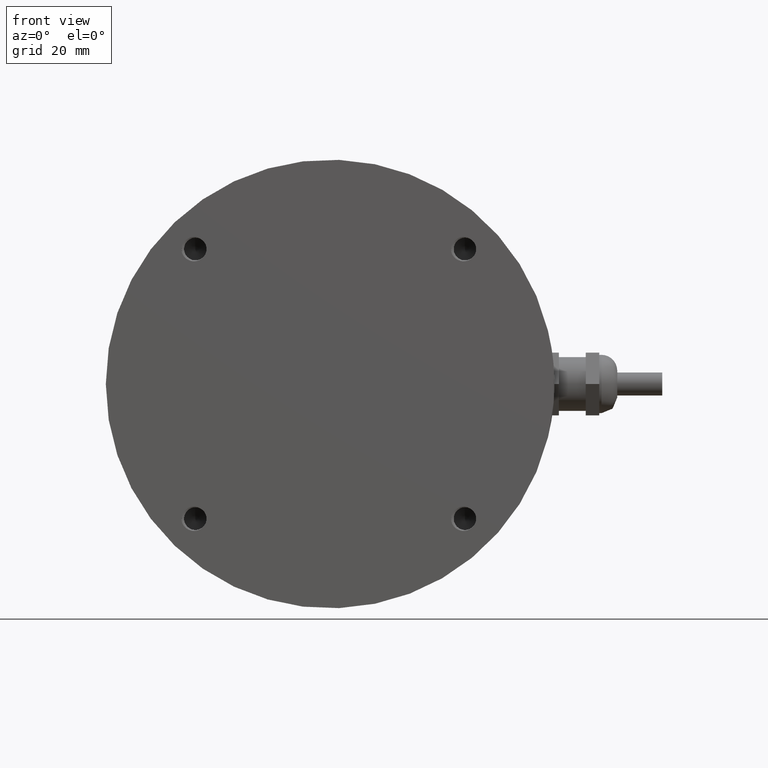
[diagram: clean part render]
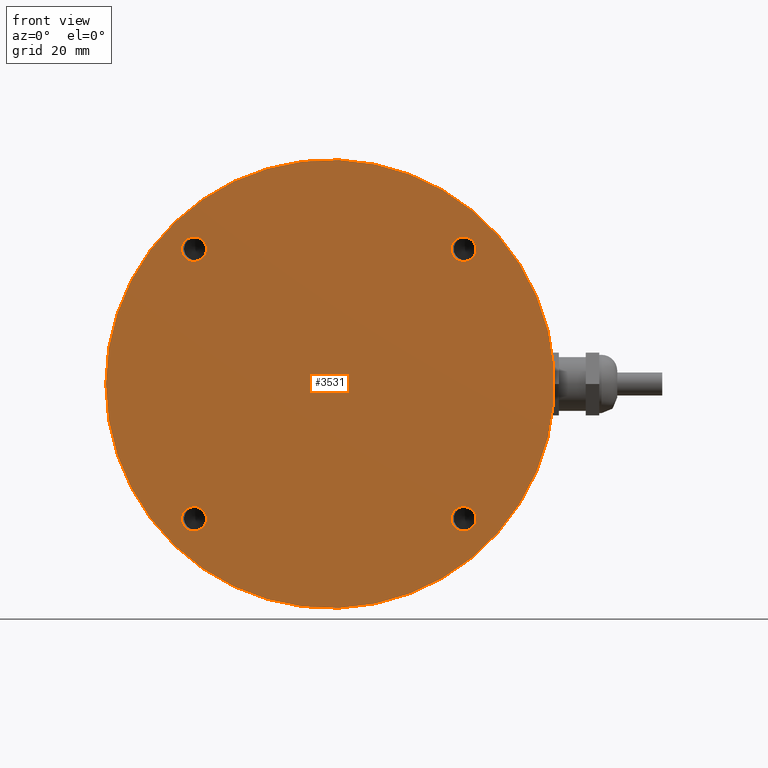
[diagram: same view with one face highlighted and labeled with its STEP entity id]
A machine part, front view. The second image highlights one B-rep face of the part: STEP entity #3531.
In plain terms, the highlighted planar face has unit normal (0, 1, 0).
Its self-contained STEP definition (entity closure, byte-faithful):
#280=B_SPLINE_CURVE_WITH_KNOTS('',3,(#9775,#9776,#9777,#9778,#9779,#9780,
#9781,#9782,#9783,#9784,#9785,#9786,#9787,#9788,#9789,#9790,#9791,#9792,
#9793,#9794,#9795,#9796,#9797,#9798,#9799,#9800,#9801,#9802,#9803,#9804,
#9805,#9806,#9807,#9808,#9809,#9810,#9811,#9812,#9813,#9814,#9815,#9816,
#9817,#9818,#9819,#9820,#9821,#9822,#9823,#9824,#9825,#9826,#9827,#9828,
#9829,#9830,#9831,#9832,#9833,#9834,#9835,#9836,#9837,#9838,#9839,#9840,
#9841,#9842,#9843,#9844,#9845,#9846,#9847,#9848,#9849,#9850,#9851,#9852,
#9853,#9854,#9855,#9856,#9857,#9858,#9859,#9860,#9861,#9862,#9863,#9864,
#9865,#9866,#9867,#9868),.UNSPECIFIED.,.F.,.F.,(4,3,3,3,3,3,3,3,3,3,3,3,
3,3,3,3,3,3,3,3,3,3,3,3,3,3,3,3,3,3,3,4),(0.,0.0253705834082992,0.0514120042985243,
0.0781588120021531,0.0899223541166714,0.0966319658482026,0.102678024640432,
0.129983762706716,0.15773806695677,0.184650166699466,0.195933338357884,
0.203013317119817,0.207157655786571,0.236272060857063,0.265386465927555,
0.293275587270377,0.302547287562926,0.311260059797156,0.315698428030233,
0.343805983337003,0.372945241404305,0.402398191117604,0.413315324493537,
0.422795520933631,0.427313730031338,0.457370780680161,0.482274708667488,
0.490757267952072,0.498351610007912,0.528860855783669,0.556986492629469,
0.566847306048092),.UNSPECIFIED.);
#282=B_SPLINE_CURVE_WITH_KNOTS('',3,(#10291,#10292,#10293,#10294,#10295,
#10296,#10297,#10298,#10299,#10300,#10301,#10302,#10303,#10304,#10305,#10306,
#10307,#10308,#10309,#10310,#10311,#10312,#10313,#10314,#10315,#10316,#10317,
#10318,#10319,#10320,#10321,#10322,#10323,#10324,#10325,#10326,#10327,#10328,
#10329,#10330,#10331,#10332,#10333,#10334,#10335,#10336,#10337,#10338,#10339,
#10340,#10341,#10342,#10343,#10344,#10345,#10346,#10347,#10348,#10349,#10350,
#10351,#10352,#10353,#10354,#10355,#10356,#10357,#10358,#10359,#10360,#10361,
#10362,#10363,#10364,#10365,#10366,#10367,#10368,#10369,#10370,#10371,#10372,
#10373,#10374,#10375,#10376,#10377,#10378,#10379,#10380,#10381),
 .UNSPECIFIED.,.F.,.F.,(4,3,3,3,3,3,3,3,3,3,3,3,3,3,3,3,3,3,3,3,3,3,3,3,
3,3,3,3,3,3,4),(0.,0.0297304173600889,0.0601166927258035,0.0893477848433163,
0.11492499044614,0.120627336259494,0.150386523752897,0.179980199902824,
0.208476507343594,0.220427405561447,0.228732878835483,0.234133263890825,
0.264049346778365,0.29195375844713,0.293965429665905,0.322911784357702,
0.33920514284161,0.343413182600711,0.371505602754483,0.399644575717355,
0.427379802239232,0.437700679220014,0.444655002057013,0.449294099859792,
0.47723825011643,0.498196362808908,0.506458519761779,0.511848963699955,
0.537782595189055,0.561070700886343,0.56924861039942),.UNSPECIFIED.);
#287=B_SPLINE_CURVE_WITH_KNOTS('',3,(#10996,#10997,#10998,#10999,#11000,
#11001,#11002,#11003,#11004,#11005,#11006,#11007,#11008,#11009,#11010,#11011,
#11012,#11013,#11014,#11015,#11016,#11017,#11018,#11019,#11020,#11021,#11022,
#11023,#11024,#11025,#11026,#11027,#11028,#11029,#11030,#11031,#11032,#11033,
#11034,#11035,#11036,#11037,#11038,#11039,#11040,#11041,#11042,#11043,#11044,
#11045,#11046,#11047,#11048,#11049,#11050,#11051,#11052,#11053,#11054,#11055,
#11056,#11057,#11058,#11059,#11060,#11061,#11062,#11063,#11064,#11065,#11066,
#11067,#11068,#11069,#11070,#11071,#11072,#11073,#11074,#11075,#11076,#11077,
#11078,#11079,#11080,#11081,#11082,#11083,#11084,#11085,#11086,#11087,#11088,
#11089),.UNSPECIFIED.,.F.,.F.,(4,3,3,3,3,3,3,3,3,3,3,3,3,3,3,3,3,3,3,3,
3,3,3,3,3,3,3,3,3,3,3,4),(0.,0.0253706187720667,0.0514120714810479,0.0781588707868613,
0.0899223676469118,0.0966319675357899,0.102678024647768,0.129983787127424,
0.15773810298617,0.184650193721516,0.195933344047695,0.203013318987727,
0.207157659883991,0.236272062905773,0.265386465927555,0.293275569418685,
0.302547250697831,0.31125990224818,0.315698399079355,0.343805928369098,
0.372945174701294,0.402398121621216,0.4133151944441,0.422795031626974,0.427312758888515,
0.457369793372607,0.48227396818682,0.490755821363297,0.498351626376732,
0.528860872105544,0.556986492629456,0.566847306048081),.UNSPECIFIED.);
#289=B_SPLINE_CURVE_WITH_KNOTS('',3,(#11512,#11513,#11514,#11515,#11516,
#11517,#11518,#11519,#11520,#11521,#11522,#11523,#11524,#11525,#11526,#11527,
#11528,#11529,#11530,#11531,#11532,#11533,#11534,#11535,#11536,#11537,#11538,
#11539,#11540,#11541,#11542,#11543,#11544,#11545,#11546,#11547,#11548,#11549,
#11550,#11551,#11552,#11553,#11554,#11555,#11556,#11557,#11558,#11559,#11560,
#11561,#11562,#11563,#11564,#11565,#11566,#11567,#11568,#11569,#11570,#11571,
#11572,#11573,#11574,#11575,#11576,#11577,#11578,#11579,#11580,#11581,#11582,
#11583,#11584,#11585,#11586,#11587,#11588,#11589,#11590,#11591,#11592,#11593,
#11594,#11595,#11596,#11597,#11598,#11599,#11600,#11601,#11602),
 .UNSPECIFIED.,.F.,.F.,(4,3,3,3,3,3,3,3,3,3,3,3,3,3,3,3,3,3,3,3,3,3,3,3,
3,3,3,3,3,3,4),(0.,0.0297303915303409,0.0601166543289027,0.0893477512460286,
0.114924961048514,0.120627334317061,0.150386521879332,0.179980205457306,
0.208476511509457,0.220427415161122,0.228732905211347,0.234133269440353,
0.264049349553132,0.291953768130068,0.29396542966591,0.322911783356907,
0.339205147320001,0.343413186521914,0.371505606088268,0.399644579406532,
0.427379812628913,0.437700702856547,0.444655216492684,0.449294338762945,
0.477238429293799,0.49819649719194,0.506458781294085,0.511849080073343,
0.537782725355651,0.561070700886361,0.569248610399438),.UNSPECIFIED.);
#294=B_SPLINE_CURVE_WITH_KNOTS('',3,(#12217,#12218,#12219,#12220,#12221,
#12222,#12223,#12224,#12225,#12226,#12227,#12228,#12229,#12230,#12231,#12232,
#12233,#12234,#12235,#12236,#12237,#12238,#12239,#12240,#12241,#12242,#12243,
#12244,#12245,#12246,#12247,#12248,#12249,#12250,#12251,#12252,#12253,#12254,
#12255,#12256,#12257,#12258,#12259,#12260,#12261,#12262,#12263,#12264,#12265,
#12266,#12267,#12268,#12269,#12270,#12271,#12272,#12273,#12274,#12275,#12276,
#12277,#12278,#12279,#12280,#12281,#12282,#12283,#12284,#12285,#12286,#12287,
#12288,#12289,#12290,#12291,#12292,#12293,#12294,#12295,#12296,#12297,#12298,
#12299,#12300,#12301,#12302,#12303,#12304,#12305,#12306,#12307,#12308,#12309,
#12310),.UNSPECIFIED.,.F.,.F.,(4,3,3,3,3,3,3,3,3,3,3,3,3,3,3,3,3,3,3,3,
3,3,3,3,3,3,3,3,3,3,3,4),(0.,0.0253705682757187,0.0514119755497427,0.0781587868469686,
0.0899223483265641,0.0966319651260404,0.102678024632256,0.129983752250442,
0.157738051532309,0.184650155131119,0.195933335921263,0.203013316321003,
0.20715765404962,0.236272059988585,0.26538646592755,0.293275594907346,0.302547303333847,
0.311260127198223,0.315698440417438,0.343806006854297,0.372945269942618,
0.402398220851452,0.413315380135417,0.422795730301141,0.427314145892936,
0.457371203464206,0.482275025755515,0.49075788748279,0.498351603135453,
0.528860848929923,0.55698649262944,0.566847306048062),.UNSPECIFIED.);
#296=B_SPLINE_CURVE_WITH_KNOTS('',3,(#12733,#12734,#12735,#12736,#12737,
#12738,#12739,#12740,#12741,#12742,#12743,#12744,#12745,#12746,#12747,#12748,
#12749,#12750,#12751,#12752,#12753,#12754,#12755,#12756,#12757,#12758,#12759,
#12760,#12761,#12762,#12763,#12764,#12765,#12766,#12767,#12768,#12769,#12770,
#12771,#12772,#12773,#12774,#12775,#12776,#12777,#12778,#12779,#12780,#12781,
#12782,#12783,#12784,#12785,#12786,#12787,#12788,#12789,#12790,#12791,#12792,
#12793,#12794,#12795,#12796,#12797,#12798,#12799,#12800,#12801,#12802,#12803,
#12804,#12805,#12806,#12807,#12808,#12809,#12810,#12811,#12812,#12813,#12814,
#12815,#12816,#12817,#12818,#12819,#12820,#12821,#12822,#12823),
 .UNSPECIFIED.,.F.,.F.,(4,3,3,3,3,3,3,3,3,3,3,3,3,3,3,3,3,3,3,3,3,3,3,3,
3,3,3,3,3,3,4),(0.,0.0297304037337922,0.0601166724702753,0.0893477671197287,
0.114924974938,0.120627335235574,0.150386522765833,0.179980202834872,0.208476509542629,
0.220427410627962,0.228732892756743,0.234133266814174,0.264049348240038,
0.291953763553422,0.293965429665902,0.322911783830581,0.339205145206377,
0.343413184659188,0.371505604503081,0.399644577653894,0.427379807710983,
0.437700691670993,0.444655115015024,0.449294225697953,0.477238344495057,
0.498196433592884,0.506458657523964,0.511849024980794,0.537782663749296,
0.561070700886366,0.569248610399447),.UNSPECIFIED.);
#301=B_SPLINE_CURVE_WITH_KNOTS('',3,(#13438,#13439,#13440,#13441,#13442,
#13443,#13444,#13445,#13446,#13447,#13448,#13449,#13450,#13451,#13452,#13453,
#13454,#13455,#13456,#13457,#13458,#13459,#13460,#13461,#13462,#13463,#13464,
#13465,#13466,#13467,#13468,#13469,#13470,#13471,#13472,#13473,#13474,#13475,
#13476,#13477,#13478,#13479,#13480,#13481,#13482,#13483,#13484,#13485,#13486,
#13487,#13488,#13489,#13490,#13491,#13492,#13493,#13494,#13495,#13496,#13497,
#13498,#13499,#13500,#13501,#13502,#13503,#13504,#13505,#13506,#13507,#13508,
#13509,#13510,#13511,#13512,#13513,#13514,#13515,#13516,#13517,#13518,#13519,
#13520,#13521,#13522,#13523,#13524,#13525,#13526,#13527,#13528,#13529,#13530,
#13531),.UNSPECIFIED.,.F.,.F.,(4,3,3,3,3,3,3,3,3,3,3,3,3,3,3,3,3,3,3,3,
3,3,3,3,3,3,3,3,3,3,3,4),(0.,0.0253706002455133,0.0514120362854931,0.0781588399907508,
0.0899223605588014,0.0966319666516116,0.102678024640986,0.129983774331143,
0.157738084109143,0.184650179563746,0.195933341066586,0.203013318010222,
0.20715765773775,0.236272061832652,0.265386465927554,0.293275578771231,
0.302547270011799,0.311259984789129,0.315698414246203,0.343805957167474,
0.372945209647784,0.402398158030994,0.41331526257787,0.422795287971228,
0.427313267549777,0.457370310501696,0.482274356033639,0.490756579023248,
0.498351617754146,0.528860863508109,0.556986492629466,0.566847306048091),
 .UNSPECIFIED.);
#303=B_SPLINE_CURVE_WITH_KNOTS('',3,(#13954,#13955,#13956,#13957,#13958,
#13959,#13960,#13961,#13962,#13963,#13964,#13965,#13966,#13967,#13968,#13969,
#13970,#13971,#13972,#13973,#13974,#13975,#13976,#13977,#13978,#13979,#13980,
#13981,#13982,#13983,#13984,#13985,#13986,#13987,#13988,#13989,#13990,#13991,
#13992,#13993,#13994,#13995,#13996,#13997,#13998,#13999,#14000,#14001,#14002,
#14003,#14004,#14005,#14006,#14007,#14008,#14009,#14010,#14011,#14012,#14013,
#14014,#14015,#14016,#14017,#14018,#14019,#14020,#14021,#14022,#14023,#14024,
#14025,#14026,#14027,#14028,#14029,#14030,#14031,#14032,#14033,#14034,#14035,
#14036,#14037,#14038,#14039,#14040,#14041,#14042,#14043,#14044),
 .UNSPECIFIED.,.F.,.F.,(4,3,3,3,3,3,3,3,3,3,3,3,3,3,3,3,3,3,3,3,3,3,3,3,
3,3,3,3,3,3,4),(0.,0.0297303807509431,0.060116638304541,0.0893477372247118,
0.114924948779861,0.120627333489626,0.150386521080176,0.17998020775748,
0.208476513234587,0.22042741914567,0.228732916155412,0.234133271734607,
0.264049350700257,0.291953772159343,0.293965429665908,0.322911782937161,
0.339205149183311,0.343413188154856,0.371505607475983,0.399644580941662,
0.427379816957591,0.437700712706597,0.444655305843719,0.449294438324573,
0.47723850396502,0.498196553195355,0.506458890293291,0.511849128597814,
0.537782779633776,0.56107070088636,0.569248610399438),.UNSPECIFIED.);
#320=FACE_BOUND('',#785,.T.);
#321=FACE_BOUND('',#786,.T.);
#322=FACE_BOUND('',#787,.T.);
#323=FACE_BOUND('',#788,.T.);
#350=PLANE('',#3796);
#563=FACE_OUTER_BOUND('',#784,.T.);
#784=EDGE_LOOP('',(#3130));
#785=EDGE_LOOP('',(#3131,#3132,#3133,#3134));
#786=EDGE_LOOP('',(#3135,#3136,#3137,#3138));
#787=EDGE_LOOP('',(#3139,#3140,#3141,#3142));
#788=EDGE_LOOP('',(#3143,#3144,#3145,#3146));
#1210=CIRCLE('',#3633,2.5175);
#1212=CIRCLE('',#3650,2.5175);
#1214=CIRCLE('',#3667,2.5175);
#1216=CIRCLE('',#3684,2.5175);
#1218=CIRCLE('',#3701,3.0735);
#1220=CIRCLE('',#3718,3.0735);
#1222=CIRCLE('',#3735,3.0735);
#1224=CIRCLE('',#3752,3.0735);
#1243=CIRCLE('',#3794,50.);
#1402=VERTEX_POINT('',#6090);
#1403=VERTEX_POINT('',#6104);
#1421=VERTEX_POINT('',#6681);
#1422=VERTEX_POINT('',#6695);
#1440=VERTEX_POINT('',#7272);
#1441=VERTEX_POINT('',#7286);
#1459=VERTEX_POINT('',#7863);
#1460=VERTEX_POINT('',#7877);
#1481=VERTEX_POINT('',#8186);
#1482=VERTEX_POINT('',#8192);
#1503=VERTEX_POINT('',#8487);
#1504=VERTEX_POINT('',#8493);
#1525=VERTEX_POINT('',#8788);
#1526=VERTEX_POINT('',#8794);
#1547=VERTEX_POINT('',#9089);
#1548=VERTEX_POINT('',#9095);
#1571=VERTEX_POINT('',#14075);
#1766=EDGE_CURVE('',#1403,#1402,#1210,.F.);
#1804=EDGE_CURVE('',#1422,#1421,#1212,.F.);
#1842=EDGE_CURVE('',#1441,#1440,#1214,.F.);
#1880=EDGE_CURVE('',#1460,#1459,#1216,.F.);
#1919=EDGE_CURVE('',#1482,#1481,#1218,.T.);
#1958=EDGE_CURVE('',#1504,#1503,#1220,.T.);
#1997=EDGE_CURVE('',#1526,#1525,#1222,.T.);
#2036=EDGE_CURVE('',#1548,#1547,#1224,.T.);
#2055=EDGE_CURVE('',#1402,#1548,#280,.T.);
#2057=EDGE_CURVE('',#1547,#1403,#282,.T.);
#2064=EDGE_CURVE('',#1421,#1526,#287,.T.);
#2066=EDGE_CURVE('',#1525,#1422,#289,.T.);
#2073=EDGE_CURVE('',#1459,#1504,#294,.T.);
#2075=EDGE_CURVE('',#1503,#1460,#296,.T.);
#2082=EDGE_CURVE('',#1440,#1482,#301,.T.);
#2084=EDGE_CURVE('',#1481,#1441,#303,.T.);
#2096=EDGE_CURVE('',#1571,#1571,#1243,.T.);
#3130=ORIENTED_EDGE('',*,*,#2096,.F.);
#3131=ORIENTED_EDGE('',*,*,#2057,.T.);
#3132=ORIENTED_EDGE('',*,*,#1766,.T.);
#3133=ORIENTED_EDGE('',*,*,#2055,.T.);
#3134=ORIENTED_EDGE('',*,*,#2036,.T.);
#3135=ORIENTED_EDGE('',*,*,#2066,.T.);
#3136=ORIENTED_EDGE('',*,*,#1804,.T.);
#3137=ORIENTED_EDGE('',*,*,#2064,.T.);
#3138=ORIENTED_EDGE('',*,*,#1997,.T.);
#3139=ORIENTED_EDGE('',*,*,#2075,.T.);
#3140=ORIENTED_EDGE('',*,*,#1880,.T.);
#3141=ORIENTED_EDGE('',*,*,#2073,.T.);
#3142=ORIENTED_EDGE('',*,*,#1958,.T.);
#3143=ORIENTED_EDGE('',*,*,#2084,.T.);
#3144=ORIENTED_EDGE('',*,*,#1842,.T.);
#3145=ORIENTED_EDGE('',*,*,#2082,.T.);
#3146=ORIENTED_EDGE('',*,*,#1919,.T.);
#3531=ADVANCED_FACE('',(#563,#320,#321,#322,#323),#350,.F.);
#3633=AXIS2_PLACEMENT_3D('',#6105,#4094,#4095);
#3650=AXIS2_PLACEMENT_3D('',#6696,#4138,#4139);
#3667=AXIS2_PLACEMENT_3D('',#7287,#4182,#4183);
#3684=AXIS2_PLACEMENT_3D('',#7878,#4226,#4227);
#3701=AXIS2_PLACEMENT_3D('',#8193,#4271,#4272);
#3718=AXIS2_PLACEMENT_3D('',#8494,#4316,#4317);
#3735=AXIS2_PLACEMENT_3D('',#8795,#4361,#4362);
#3752=AXIS2_PLACEMENT_3D('',#9096,#4406,#4407);
#3794=AXIS2_PLACEMENT_3D('',#14077,#4499,#4500);
#3796=AXIS2_PLACEMENT_3D('',#14079,#4503,#4504);
#4094=DIRECTION('center_axis',(0.,-1.,0.));
#4095=DIRECTION('ref_axis',(0.,0.,-1.));
#4138=DIRECTION('center_axis',(0.,-1.,0.));
#4139=DIRECTION('ref_axis',(0.,0.,-1.));
#4182=DIRECTION('center_axis',(0.,-1.,0.));
#4183=DIRECTION('ref_axis',(0.,0.,-1.));
#4226=DIRECTION('center_axis',(0.,-1.,0.));
#4227=DIRECTION('ref_axis',(0.,0.,-1.));
#4271=DIRECTION('center_axis',(0.,1.,0.));
#4272=DIRECTION('ref_axis',(-9.10285349619453E-14,0.,-1.));
#4316=DIRECTION('center_axis',(0.,1.,0.));
#4317=DIRECTION('ref_axis',(-8.66938428209005E-14,0.,-1.));
#4361=DIRECTION('center_axis',(0.,1.,0.));
#4362=DIRECTION('ref_axis',(-8.81387402012488E-14,0.,-1.));
#4406=DIRECTION('center_axis',(0.,1.,0.));
#4407=DIRECTION('ref_axis',(-9.24734323422937E-14,0.,-1.));
#4499=DIRECTION('center_axis',(0.,1.,0.));
#4500=DIRECTION('ref_axis',(1.,0.,0.));
#4503=DIRECTION('center_axis',(0.,1.,0.));
#4504=DIRECTION('ref_axis',(1.,0.,0.));
#6090=CARTESIAN_POINT('',(31.6880254038032,0.,-31.9655041970934));
#6104=CARTESIAN_POINT('',(31.6880254038032,0.,-28.1385722037632));
#6105=CARTESIAN_POINT('Origin',(30.0520382004283,0.,-30.0520382004283));
#6681=CARTESIAN_POINT('',(-28.4160509970533,0.,28.1385722037632));
#6695=CARTESIAN_POINT('',(-28.4160509970533,0.,31.9655041970933));
#6696=CARTESIAN_POINT('Origin',(-30.0520382004283,0.,30.0520382004283));
#7272=CARTESIAN_POINT('',(31.6880254038032,0.,28.1385722037632));
#7286=CARTESIAN_POINT('',(31.6880254038032,0.,31.9655041970933));
#7287=CARTESIAN_POINT('Origin',(30.0520382004283,0.,30.0520382004283));
#7863=CARTESIAN_POINT('',(-28.4160509970533,0.,-31.9655041970933));
#7877=CARTESIAN_POINT('',(-28.4160509970533,0.,-28.1385722037632));
#7878=CARTESIAN_POINT('Origin',(-30.0520382004283,0.,-30.0520382004283));
#8186=CARTESIAN_POINT('',(27.0828152466826,0.,30.8458374829611));
#8192=CARTESIAN_POINT('',(27.0828152466826,0.,29.2582389178954));
#8193=CARTESIAN_POINT('Origin',(30.0520382004283,0.,30.0520382004283));
#8487=CARTESIAN_POINT('',(-33.021261154174,0.,-29.2582389178954));
#8493=CARTESIAN_POINT('',(-33.021261154174,0.,-30.8458374829611));
#8494=CARTESIAN_POINT('Origin',(-30.0520382004283,0.,-30.0520382004283));
#8788=CARTESIAN_POINT('',(-33.021261154174,0.,30.8458374829611));
#8794=CARTESIAN_POINT('',(-33.021261154174,0.,29.2582389178954));
#8795=CARTESIAN_POINT('Origin',(-30.0520382004283,0.,30.0520382004283));
#9089=CARTESIAN_POINT('',(27.0828152466826,0.,-29.2582389178954));
#9095=CARTESIAN_POINT('',(27.0828152466826,0.,-30.8458374829611));
#9096=CARTESIAN_POINT('Origin',(30.0520382004283,0.,-30.0520382004283));
#9775=CARTESIAN_POINT('Ctrl Pts',(31.6880254038032,-5.55111512312578E-16,
-31.9655041970934));
#9776=CARTESIAN_POINT('Ctrl Pts',(31.6301115497931,-5.53233711922707E-16,
-32.0271307785434));
#9777=CARTESIAN_POINT('Ctrl Pts',(31.5690481795617,-5.36253069702297E-16,
-32.0853891318414));
#9778=CARTESIAN_POINT('Ctrl Pts',(31.505219823432,-5.44703171456717E-16,
-32.1402810394055));
#9779=CARTESIAN_POINT('Ctrl Pts',(31.4397037468028,-5.53376706976602E-16,
-32.1966243739414));
#9780=CARTESIAN_POINT('Ctrl Pts',(31.3712740981926,-3.56196008000576E-16,
-32.2494213190153));
#9781=CARTESIAN_POINT('Ctrl Pts',(31.300298171586,-2.98372437868011E-16,
-32.2986483104948));
#9782=CARTESIAN_POINT('Ctrl Pts',(31.2273997122993,-2.3898259437243E-16,
-32.3492087188721));
#9783=CARTESIAN_POINT('Ctrl Pts',(31.1518146062219,-4.52118722773125E-16,
-32.3960036866365));
#9784=CARTESIAN_POINT('Ctrl Pts',(31.0738978765374,-5.20417042793042E-16,
-32.4389736493853));
#9785=CARTESIAN_POINT('Ctrl Pts',(31.039629236286,-5.5045539999842E-16,
-32.4578723146786));
#9786=CARTESIAN_POINT('Ctrl Pts',(31.0049090843992,-1.54609198004119E-16,
-32.4760306112277));
#9787=CARTESIAN_POINT('Ctrl Pts',(30.9697655543268,-9.71445146547012E-17,
-32.4934410543344));
#9788=CARTESIAN_POINT('Ctrl Pts',(30.9497206189353,-6.4368186759881E-17,
-32.5033715082898));
#9789=CARTESIAN_POINT('Ctrl Pts',(30.9295379269893,-1.42832729295966E-16,
-32.5130586379326));
#9790=CARTESIAN_POINT('Ctrl Pts',(30.9092225508326,-9.71445146547012E-17,
-32.5225008205617));
#9791=CARTESIAN_POINT('Ctrl Pts',(30.8909162816258,-5.59746760878944E-17,
-32.531009210255));
#9792=CARTESIAN_POINT('Ctrl Pts',(30.8724965489481,-8.02450452504136E-16,
-32.5393210807999));
#9793=CARTESIAN_POINT('Ctrl Pts',(30.8539988087688,-8.04911692853238E-16,
-32.5474215801207));
#9794=CARTESIAN_POINT('Ctrl Pts',(30.7704577011629,-8.16027361191948E-16,
-32.5840057616944));
#9795=CARTESIAN_POINT('Ctrl Pts',(30.6852332372736,-1.23202371393035E-15,
-32.616328838192));
#9796=CARTESIAN_POINT('Ctrl Pts',(30.5987237451301,-1.08246744900953E-15,
-32.6443651032026));
#9797=CARTESIAN_POINT('Ctrl Pts',(30.5107931145922,-9.30454342129277E-16,
-32.6728619351596));
#9798=CARTESIAN_POINT('Ctrl Pts',(30.4215341343727,-3.14602281586883E-16,
-32.6969304493654));
#9799=CARTESIAN_POINT('Ctrl Pts',(30.3313279757065,-3.60822483003176E-16,
-32.7165045835058));
#9800=CARTESIAN_POINT('Ctrl Pts',(30.2438591233959,-4.05640132166201E-16,
-32.7354847404436));
#9801=CARTESIAN_POINT('Ctrl Pts',(30.1554987881336,-9.33468170056871E-16,
-32.7502392993579));
#9802=CARTESIAN_POINT('Ctrl Pts',(30.0665726318974,-9.99200722162641E-16,
-32.7606673008805));
#9803=CARTESIAN_POINT('Ctrl Pts',(30.0292894360365,-1.02675976348778E-15,
-32.7650393466279));
#9804=CARTESIAN_POINT('Ctrl Pts',(29.9919065887382,-6.26072429135202E-16,
-32.7686503586536));
#9805=CARTESIAN_POINT('Ctrl Pts',(29.954447472734,-6.10622663543836E-16,
-32.7714905644258));
#9806=CARTESIAN_POINT('Ctrl Pts',(29.9309425794487,-6.00928225173564E-16,
-32.7732727403206));
#9807=CARTESIAN_POINT('Ctrl Pts',(29.9074076512073,-4.42525978890973E-16,
-32.7747513963245));
#9808=CARTESIAN_POINT('Ctrl Pts',(29.8838484319842,-4.30211422042248E-16,
-32.7759238221033));
#9809=CARTESIAN_POINT('Ctrl Pts',(29.8700577997707,-4.23002969047091E-16,
-32.7766101136379));
#9810=CARTESIAN_POINT('Ctrl Pts',(29.8562637956197,-2.62525364804685E-16,
-32.7771911855679));
#9811=CARTESIAN_POINT('Ctrl Pts',(29.8424754037051,-2.77555756156289E-16,
-32.7776665341529));
#9812=CARTESIAN_POINT('Ctrl Pts',(29.745610533396,-3.83145800157533E-16,
-32.7810059068167));
#9813=CARTESIAN_POINT('Ctrl Pts',(29.6489086967436,-1.09237759207599E-15,
-32.7791375367466));
#9814=CARTESIAN_POINT('Ctrl Pts',(29.5527888971392,-9.43689570931383E-16,
-32.7719963292207));
#9815=CARTESIAN_POINT('Ctrl Pts',(29.4566690975348,-7.95001549786775E-16,
-32.7648551216948));
#9816=CARTESIAN_POINT('Ctrl Pts',(29.3611302925793,-5.67524686400471E-16,
-32.7524415084839));
#9817=CARTESIAN_POINT('Ctrl Pts',(29.2665726981508,-6.10622663543836E-16,
-32.7346379308153));
#9818=CARTESIAN_POINT('Ctrl Pts',(29.1759945730433,-7.0638590282187E-16,
-32.717583619153));
#9819=CARTESIAN_POINT('Ctrl Pts',(29.0863158407749,-4.95583196365072E-16,
-32.6955836039617));
#9820=CARTESIAN_POINT('Ctrl Pts',(28.9977762661183,-4.71844785465692E-16,
-32.6689129149058));
#9821=CARTESIAN_POINT('Ctrl Pts',(28.968341405473,-4.63952983189996E-16,
-32.6600462807626));
#9822=CARTESIAN_POINT('Ctrl Pts',(28.9390324825844,-4.16333634234434E-16,
-32.6506630035438));
#9823=CARTESIAN_POINT('Ctrl Pts',(28.9098584805606,-4.16333634234434E-16,
-32.6407719411198));
#9824=CARTESIAN_POINT('Ctrl Pts',(28.8824431816646,-4.16333634234434E-16,
-32.631477143905));
#9825=CARTESIAN_POINT('Ctrl Pts',(28.8551470260398,-8.53355186466201E-16,
-32.6217339316881));
#9826=CARTESIAN_POINT('Ctrl Pts',(28.8279775915311,-8.88178419700125E-16,
-32.6115491848863));
#9827=CARTESIAN_POINT('Ctrl Pts',(28.8141372257104,-9.05917702674982E-16,
-32.6063609789455));
#9828=CARTESIAN_POINT('Ctrl Pts',(28.8003378464061,-3.8348622739454E-16,
-32.6010612015935));
#9829=CARTESIAN_POINT('Ctrl Pts',(28.7865842266874,-3.88578058618805E-16,
-32.5956527130486));
#9830=CARTESIAN_POINT('Ctrl Pts',(28.6994845074637,-4.20823902188556E-16,
-32.5614015236658));
#9831=CARTESIAN_POINT('Ctrl Pts',(28.6141706178657,-6.83487505368223E-16,
-32.5227762069685));
#9832=CARTESIAN_POINT('Ctrl Pts',(28.5308773856042,-6.93889390390723E-16,
-32.4801071281578));
#9833=CARTESIAN_POINT('Ctrl Pts',(28.4445268309708,-7.04673082132994E-16,
-32.4358718581248));
#9834=CARTESIAN_POINT('Ctrl Pts',(28.3603472638166,-3.08032115948924E-16,
-32.3872903915704));
#9835=CARTESIAN_POINT('Ctrl Pts',(28.278603765103,-2.4980018054066E-16,
-32.3346749624076));
#9836=CARTESIAN_POINT('Ctrl Pts',(28.1959802764938,-1.90941363293963E-16,
-32.2814931145481));
#9837=CARTESIAN_POINT('Ctrl Pts',(28.1158447658489,-4.20342886884387E-16,
-32.2241895678734));
#9838=CARTESIAN_POINT('Ctrl Pts',(28.0384863019011,-2.77555756156289E-16,
-32.1630352207033));
#9839=CARTESIAN_POINT('Ctrl Pts',(28.0098123430312,-2.24629778768645E-16,
-32.1403675364451));
#9840=CARTESIAN_POINT('Ctrl Pts',(27.9815201400204,-5.42465578471991E-16,
-32.1171703124942));
#9841=CARTESIAN_POINT('Ctrl Pts',(27.9536252981593,-5.82867087928207E-16,
-32.0934557556973));
#9842=CARTESIAN_POINT('Ctrl Pts',(27.9294020363009,-6.17950862480743E-16,
-32.072862560654));
#9843=CARTESIAN_POINT('Ctrl Pts',(27.9054784222743,-1.23391487964571E-15,
-32.0518792409356));
#9844=CARTESIAN_POINT('Ctrl Pts',(27.8818650466921,-1.2490009027033E-15,
-32.0305133137529));
#9845=CARTESIAN_POINT('Ctrl Pts',(27.8706110427211,-1.25619081770746E-15,
-32.0203304312369));
#9846=CARTESIAN_POINT('Ctrl Pts',(27.8594305113365,-5.55445926963935E-16,
-32.0100632965723));
#9847=CARTESIAN_POINT('Ctrl Pts',(27.8483302960534,-5.55111512312578E-16,
-31.9997183741884));
#9848=CARTESIAN_POINT('Ctrl Pts',(27.7744869378195,-5.52886843667068E-16,
-31.9308995459039));
#9849=CARTESIAN_POINT('Ctrl Pts',(27.7041181056425,-5.04845337975632E-16,
-31.8585716305507));
#9850=CARTESIAN_POINT('Ctrl Pts',(27.6375147609985,-6.66133814775094E-16,
-31.7830447328008));
#9851=CARTESIAN_POINT('Ctrl Pts',(27.5823302081923,-7.99770233674924E-16,
-31.720466522961));
#9852=CARTESIAN_POINT('Ctrl Pts',(27.5297307107726,-7.7169467397782E-16,
-31.6556911121886));
#9853=CARTESIAN_POINT('Ctrl Pts',(27.4798953194396,-5.55111512312578E-16,
-31.588871857944));
#9854=CARTESIAN_POINT('Ctrl Pts',(27.4629208220163,-4.81340840079548E-16,
-31.5661124648969));
#9855=CARTESIAN_POINT('Ctrl Pts',(27.4462671347998,-5.89956383026903E-16,
-31.5431157913608));
#9856=CARTESIAN_POINT('Ctrl Pts',(27.4299417703959,-5.55111512312578E-16,
-31.5198874197457));
#9857=CARTESIAN_POINT('Ctrl Pts',(27.4153258511539,-5.23915282705667E-16,
-31.4990913140509));
#9858=CARTESIAN_POINT('Ctrl Pts',(27.4009707005012,-6.24956066336201E-16,
-31.4781056466268));
#9859=CARTESIAN_POINT('Ctrl Pts',(27.3868976772021,-6.10622663543836E-16,
-31.4569587199371));
#9860=CARTESIAN_POINT('Ctrl Pts',(27.3303612026157,-5.53040149432707E-16,
-31.3720037917772));
#9861=CARTESIAN_POINT('Ctrl Pts',(27.2783266928183,-6.72729872605212E-16,
-31.284383036524));
#9862=CARTESIAN_POINT('Ctrl Pts',(27.2311028094471,-2.77555756156289E-16,
-31.1943871405217));
#9863=CARTESIAN_POINT('Ctrl Pts',(27.1875684066661,8.67444226089844E-17,
-31.111422392485));
#9864=CARTESIAN_POINT('Ctrl Pts',(27.1481220767537,-1.54742094798986E-16,
-31.0264383075825));
#9865=CARTESIAN_POINT('Ctrl Pts',(27.113034100361,5.55111512312578E-17,
-30.9396355568861));
#9866=CARTESIAN_POINT('Ctrl Pts',(27.1007322993265,1.85101753331659E-16,
-30.9092026200771));
#9867=CARTESIAN_POINT('Ctrl Pts',(27.0889665117604,4.56582193422585E-17,
-30.878545929582));
#9868=CARTESIAN_POINT('Ctrl Pts',(27.0777330020589,5.55111512312578E-17,
-30.8476783792767));
#10291=CARTESIAN_POINT('Ctrl Pts',(27.0828152466826,-1.11022302462516E-15,
-29.2582389178955));
#10292=CARTESIAN_POINT('Ctrl Pts',(27.1168606165921,-1.08601760244291E-15,
-29.165169059587));
#10293=CARTESIAN_POINT('Ctrl Pts',(27.1556719355706,-1.1456142082004E-15,
-29.0741645101572));
#10294=CARTESIAN_POINT('Ctrl Pts',(27.1989216327108,-1.02348685082632E-15,
-28.9854340491479));
#10295=CARTESIAN_POINT('Ctrl Pts',(27.2431254254415,-8.98665343414935E-16,
-28.8947461792503));
#10296=CARTESIAN_POINT('Ctrl Pts',(27.291966195108,-1.24885262143308E-15,
-28.8064331698679));
#10297=CARTESIAN_POINT('Ctrl Pts',(27.3451397321163,-1.16226472890446E-15,
-28.7207468508335));
#10298=CARTESIAN_POINT('Ctrl Pts',(27.3962917913864,-1.07896861471137E-15,
-28.6383180353646));
#10299=CARTESIAN_POINT('Ctrl Pts',(27.4514543206853,-1.22588400828344E-15,
-28.5583197074344));
#10300=CARTESIAN_POINT('Ctrl Pts',(27.5103865338661,-1.36002320516582E-15,
-28.4810090181635));
#10301=CARTESIAN_POINT('Ctrl Pts',(27.5619522203993,-1.4773950024379E-15,
-28.4133621650514));
#10302=CARTESIAN_POINT('Ctrl Pts',(27.6164047675805,-1.61137402522611E-15,
-28.3477733254));
#10303=CARTESIAN_POINT('Ctrl Pts',(27.673595570172,-1.68615121864946E-15,
-28.2844393899889));
#10304=CARTESIAN_POINT('Ctrl Pts',(27.6863460535041,-1.70282252443921E-15,
-28.2703193173334));
#10305=CARTESIAN_POINT('Ctrl Pts',(27.6992353602043,-1.24820692450263E-15,
-28.2563086997718));
#10306=CARTESIAN_POINT('Ctrl Pts',(27.7122433641164,-1.23512311489549E-15,
-28.2424292542163));
#10307=CARTESIAN_POINT('Ctrl Pts',(27.7801290448531,-1.16684182225357E-15,
-28.1699957266625));
#10308=CARTESIAN_POINT('Ctrl Pts',(27.8513357447226,-6.99847874123527E-16,
-28.1010278131368));
#10309=CARTESIAN_POINT('Ctrl Pts',(27.925573693373,-8.18789480661053E-16,
-28.0357656244881));
#10310=CARTESIAN_POINT('Ctrl Pts',(27.9993987536466,-9.3706957098287E-16,
-27.9708664038311));
#10311=CARTESIAN_POINT('Ctrl Pts',(28.0762222340426,-6.15738963179664E-16,
-27.909631316303));
#10312=CARTESIAN_POINT('Ctrl Pts',(28.1557859409065,-6.24500451351651E-16,
-27.8523400909948));
#10313=CARTESIAN_POINT('Ctrl Pts',(28.23239933089,-6.32937053121661E-16,
-27.7971732924609));
#10314=CARTESIAN_POINT('Ctrl Pts',(28.3115542292181,-1.01940596129796E-15,
-27.7456631290957));
#10315=CARTESIAN_POINT('Ctrl Pts',(28.3930337258281,-1.01307850997046E-15,
-27.6981042027441));
#10316=CARTESIAN_POINT('Ctrl Pts',(28.4272049310922,-1.01042487749717E-15,
-27.6781587452718));
#10317=CARTESIAN_POINT('Ctrl Pts',(28.4617851007749,-8.34101650059345E-16,
-27.6589088126881));
#10318=CARTESIAN_POINT('Ctrl Pts',(28.4967585345986,-8.04911692853238E-16,
-27.64037871887));
#10319=CARTESIAN_POINT('Ctrl Pts',(28.5210638976457,-7.84625652002903E-16,
-27.627500925405));
#10320=CARTESIAN_POINT('Ctrl Pts',(28.5455592015108,-8.8259946678563E-16,
-27.6149708309117));
#10321=CARTESIAN_POINT('Ctrl Pts',(28.5702391825903,-8.74300631892311E-16,
-27.6027970617888));
#10322=CARTESIAN_POINT('Ctrl Pts',(28.5862866005507,-8.68904563245056E-16,
-27.5948814333027));
#10323=CARTESIAN_POINT('Ctrl Pts',(28.6024147285903,-5.51314278820066E-16,
-27.5871153374172));
#10324=CARTESIAN_POINT('Ctrl Pts',(28.6185998892443,-5.55111512312578E-16,
-27.5795113433408));
#10325=CARTESIAN_POINT('Ctrl Pts',(28.7082595343827,-5.76146744197195E-16,
-27.5373881031021));
#10326=CARTESIAN_POINT('Ctrl Pts',(28.7998058106663,-8.43019520304091E-16,
-27.5001644266949));
#10327=CARTESIAN_POINT('Ctrl Pts',(28.8929673463391,-9.71445146547012E-16,
-27.468131781724));
#10328=CARTESIAN_POINT('Ctrl Pts',(28.9798643459523,-1.09123494513037E-15,
-27.4382531336581));
#10329=CARTESIAN_POINT('Ctrl Pts',(29.0681674670011,-9.93257763448634E-16,
-27.412891034108));
#10330=CARTESIAN_POINT('Ctrl Pts',(29.1576652201754,-9.43689570931383E-16,
-27.3923325526606));
#10331=CARTESIAN_POINT('Ctrl Pts',(29.1641172484906,-9.40116125003287E-16,
-27.390850460656));
#10332=CARTESIAN_POINT('Ctrl Pts',(29.1705754867149,-9.17720718279802E-16,
-27.3893933565165));
#10333=CARTESIAN_POINT('Ctrl Pts',(29.1770398559356,-9.15933995315754E-16,
-27.3879613584635));
#10334=CARTESIAN_POINT('Ctrl Pts',(29.2700570063407,-9.16908813049884E-16,
-27.3673560412653));
#10335=CARTESIAN_POINT('Ctrl Pts',(29.3643445576125,-1.05792556433968E-15,
-27.3519446946857));
#10336=CARTESIAN_POINT('Ctrl Pts',(29.4594938162931,-1.0547118733939E-15,
-27.3416502407568));
#10337=CARTESIAN_POINT('Ctrl Pts',(29.5130515439471,-1.05290294722017E-15,
-27.3358556863113));
#10338=CARTESIAN_POINT('Ctrl Pts',(29.5668821024286,-7.75950166455122E-16,
-27.3316832726415));
#10339=CARTESIAN_POINT('Ctrl Pts',(29.6209099690879,-7.7715611723761E-16,
-27.3291260138644));
#10340=CARTESIAN_POINT('Ctrl Pts',(29.634863593887,-7.77467574746216E-16,
-27.3284655578498));
#10341=CARTESIAN_POINT('Ctrl Pts',(29.6488297850768,-9.88766895624336E-16,
-27.3279129560429));
#10342=CARTESIAN_POINT('Ctrl Pts',(29.662793864506,-9.99200722162641E-16,
-27.3274683293275));
#10343=CARTESIAN_POINT('Ctrl Pts',(29.7560165546046,-1.06885582423047E-15,
-27.3245000492695));
#10344=CARTESIAN_POINT('Ctrl Pts',(29.849300549508,-1.05127859733737E-15,
-27.3263315130327));
#10345=CARTESIAN_POINT('Ctrl Pts',(29.9422699520702,-1.08246744900953E-15,
-27.3328276682433));
#10346=CARTESIAN_POINT('Ctrl Pts',(30.0353934170744,-1.11370798468221E-15,
-27.3393345884316));
#10347=CARTESIAN_POINT('Ctrl Pts',(30.1282022275386,-1.11058393111494E-15,
-27.3505220512157));
#10348=CARTESIAN_POINT('Ctrl Pts',(30.2203065378681,-1.08246744900953E-15,
-27.3663052677421));
#10349=CARTESIAN_POINT('Ctrl Pts',(30.3110893078718,-1.05475439063952E-15,
-27.3818620219343));
#10350=CARTESIAN_POINT('Ctrl Pts',(30.4011884946809,-1.38598106511667E-15,
-27.4018840550619));
#10351=CARTESIAN_POINT('Ctrl Pts',(30.4902055943638,-1.55431223447522E-15,
-27.4263331917306));
#10352=CARTESIAN_POINT('Ctrl Pts',(30.5233307802817,-1.61695189922107E-15,
-27.4354312436843));
#10353=CARTESIAN_POINT('Ctrl Pts',(30.556305807946,-1.31584381501317E-15,
-27.4451427343111));
#10354=CARTESIAN_POINT('Ctrl Pts',(30.5891088770198,-1.33226762955019E-15,
-27.4554670565325));
#10355=CARTESIAN_POINT('Ctrl Pts',(30.6112119534161,-1.3433341802627E-15,
-27.4624237008113));
#10356=CARTESIAN_POINT('Ctrl Pts',(30.6332369416553,-1.242270017959E-15,
-27.4696585986794));
#10357=CARTESIAN_POINT('Ctrl Pts',(30.655176963003,-1.27675647831893E-15,
-27.4771717401259));
#10358=CARTESIAN_POINT('Ctrl Pts',(30.669812738076,-1.29976174658606E-15,
-27.4821836152996));
#10359=CARTESIAN_POINT('Ctrl Pts',(30.6844088456392,-1.30268032539607E-15,
-27.4873187442794));
#10360=CARTESIAN_POINT('Ctrl Pts',(30.6989524747148,-1.27675647831893E-15,
-27.4925729742659));
#10361=CARTESIAN_POINT('Ctrl Pts',(30.7865577319095,-1.12060114192579E-15,
-27.5242224454494));
#10362=CARTESIAN_POINT('Ctrl Pts',(30.8723726275144,-1.37769643818839E-15,
-27.5602272595049));
#10363=CARTESIAN_POINT('Ctrl Pts',(30.9559862370881,-9.99200722162641E-16,
-27.6005240037213));
#10364=CARTESIAN_POINT('Ctrl Pts',(31.0186964442684,-7.15328935143326E-16,
-27.6307465618837));
#10365=CARTESIAN_POINT('Ctrl Pts',(31.0801679385418,-1.51974244458145E-15,
-27.6633843604824));
#10366=CARTESIAN_POINT('Ctrl Pts',(31.1402119876877,-1.49880108324396E-15,
-27.6984263444399));
#10367=CARTESIAN_POINT('Ctrl Pts',(31.1638826953229,-1.49054553005003E-15,
-27.7122406785664));
#10368=CARTESIAN_POINT('Ctrl Pts',(31.1873313953096,-8.98405932790904E-16,
-27.7264287876944));
#10369=CARTESIAN_POINT('Ctrl Pts',(31.2105458277873,-8.32667268468867E-16,
-27.7409905112534));
#10370=CARTESIAN_POINT('Ctrl Pts',(31.2256915212837,-7.89777671161551E-16,
-27.7504909546527));
#10371=CARTESIAN_POINT('Ctrl Pts',(31.2407375511768,-2.4978939964458E-15,
-27.7601505996187));
#10372=CARTESIAN_POINT('Ctrl Pts',(31.2556681737499,-2.38697950294409E-15,
-27.769961056854));
#10373=CARTESIAN_POINT('Ctrl Pts',(31.3274999687106,-1.85336564214453E-15,
-27.8171595409861));
#10374=CARTESIAN_POINT('Ctrl Pts',(31.3967366748476,-1.53024257954707E-15,
-27.8678913160019));
#10375=CARTESIAN_POINT('Ctrl Pts',(31.4630256937865,-8.88178419700125E-16,
-27.9221234430749));
#10376=CARTESIAN_POINT('Ctrl Pts',(31.5225524777724,-3.1161211716588E-16,
-27.9708232754911));
#10377=CARTESIAN_POINT('Ctrl Pts',(31.5797022056331,-1.89449108935784E-16,
-28.0223463393286));
#10378=CARTESIAN_POINT('Ctrl Pts',(31.6341899480993,-1.11022302462516E-16,
-28.076689099537));
#10379=CARTESIAN_POINT('Ctrl Pts',(31.6533240001881,-2.70626671358045E-17,
-28.0957722392931));
#10380=CARTESIAN_POINT('Ctrl Pts',(31.6721294983239,-2.43388761053888E-17,
-28.1152032599825));
#10381=CARTESIAN_POINT('Ctrl Pts',(31.6906019698016,-5.55111512312578E-17,
-28.1349715889619));
#10996=CARTESIAN_POINT('Ctrl Pts',(-28.4160509970533,-2.77555756156289E-16,
28.1385722037632));
#10997=CARTESIAN_POINT('Ctrl Pts',(-28.4739649317889,-2.8600586968921E-16,
28.0769455364126));
#10998=CARTESIAN_POINT('Ctrl Pts',(-28.5350283771153,-2.08935522073641E-16,
28.0186870928554));
#10999=CARTESIAN_POINT('Ctrl Pts',(-28.5988568040782,-2.67147415300428E-16,
27.9637950935466));
#11000=CARTESIAN_POINT('Ctrl Pts',(-28.6643729421423,-3.26898510777638E-16,
27.9074516745333));
#11001=CARTESIAN_POINT('Ctrl Pts',(-28.7328026466956,-5.51834440266338E-16,
27.854654642191));
#11002=CARTESIAN_POINT('Ctrl Pts',(-28.8037786254575,-5.06539254985228E-16,
27.8054275636827));
#11003=CARTESIAN_POINT('Ctrl Pts',(-28.8766770263528,-4.60017225520425E-16,
27.7548671435715));
#11004=CARTESIAN_POINT('Ctrl Pts',(-28.9522620617989,1.08022568205399E-16,
27.7080721527619));
#11005=CARTESIAN_POINT('Ctrl Pts',(-29.0301787120814,9.0205620750794E-17,
27.6651021586601));
#11006=CARTESIAN_POINT('Ctrl Pts',(-29.0644471963387,8.23695577123136E-17,
27.6462035463472));
#11007=CARTESIAN_POINT('Ctrl Pts',(-29.0991671873423,-5.32526987795341E-16,
27.628045295939));
#11008=CARTESIAN_POINT('Ctrl Pts',(-29.1343105522236,-5.41233724504764E-16,
27.610634892299));
#11009=CARTESIAN_POINT('Ctrl Pts',(-29.1543554351277,-5.46199826026534E-16,
27.6007044401794));
#11010=CARTESIAN_POINT('Ctrl Pts',(-29.174538073758,-3.26610975409246E-16,
27.5910173112138));
#11011=CARTESIAN_POINT('Ctrl Pts',(-29.1948533958445,-3.33066907387547E-16,
27.5815751281405));
#11012=CARTESIAN_POINT('Ctrl Pts',(-29.2131596435518,-3.38884382959608E-16,
27.573066725394));
#11013=CARTESIAN_POINT('Ctrl Pts',(-29.2315793544269,-2.02354687604208E-16,
27.5647548414743));
#11014=CARTESIAN_POINT('Ctrl Pts',(-29.2500770725835,-2.22044604925031E-16,
27.5566543285096));
#11015=CARTESIAN_POINT('Ctrl Pts',(-29.3336181786374,-3.1097003114062E-16,
27.5200700424399));
#11016=CARTESIAN_POINT('Ctrl Pts',(-29.4188426403699,-8.23909301849515E-16,
27.4877468658728));
#11017=CARTESIAN_POINT('Ctrl Pts',(-29.5053521318886,-7.63278329429795E-16,
27.4597105084093));
#11018=CARTESIAN_POINT('Ctrl Pts',(-29.5932827199532,-7.01651368431597E-16,
27.4312135960397));
#11019=CARTESIAN_POINT('Ctrl Pts',(-29.6825416580181,-2.78127922080707E-16,
27.4071450050719));
#11020=CARTESIAN_POINT('Ctrl Pts',(-29.7727477776304,-3.46944695195361E-16,
27.3875708010975));
#11021=CARTESIAN_POINT('Ctrl Pts',(-29.8602165262115,-4.13673172726603E-16,
27.3685905907364));
#11022=CARTESIAN_POINT('Ctrl Pts',(-29.9485767593151,-1.09895402728801E-16,
27.3538359785485));
#11023=CARTESIAN_POINT('Ctrl Pts',(-30.0375028182247,-1.38777878078145E-16,
27.3434079267));
#11024=CARTESIAN_POINT('Ctrl Pts',(-30.0747859152706,-1.50887130917828E-16,
27.3390358666555));
#11025=CARTESIAN_POINT('Ctrl Pts',(-30.112168664293,-5.6645954980972E-16,
27.3354248384826));
#11026=CARTESIAN_POINT('Ctrl Pts',(-30.1496276829105,-6.24500451351651E-16,
27.332584614872));
#11027=CARTESIAN_POINT('Ctrl Pts',(-30.173132546838,-6.60920078542138E-16,
27.3308024253766));
#11028=CARTESIAN_POINT('Ctrl Pts',(-30.1966674461529,1.37712165989071E-16,
27.329323755926));
#11029=CARTESIAN_POINT('Ctrl Pts',(-30.2202266369444,1.66533453693773E-16,
27.3281513169031));
#11030=CARTESIAN_POINT('Ctrl Pts',(-30.2340172673784,1.83404310205179E-16,
27.3274650168763));
#11031=CARTESIAN_POINT('Ctrl Pts',(-30.2478112699183,1.27279673282597E-16,
27.3268839367537));
#11032=CARTESIAN_POINT('Ctrl Pts',(-30.2615996604184,1.11022302462516E-16,
27.3264085802898));
#11033=CARTESIAN_POINT('Ctrl Pts',(-30.3584644618651,-3.18732893074479E-18,
27.3230691543068));
#11034=CARTESIAN_POINT('Ctrl Pts',(-30.4551662393035,-7.3858102896676E-16,
27.3249374801367));
#11035=CARTESIAN_POINT('Ctrl Pts',(-30.5512859929226,-6.38378239159465E-16,
27.3320786558959));
#11036=CARTESIAN_POINT('Ctrl Pts',(-30.6474057465417,-5.3817544935217E-16,
27.339219831655));
#11037=CARTESIAN_POINT('Ctrl Pts',(-30.742944518733,-3.03156433066385E-16,
27.3516334255656));
#11038=CARTESIAN_POINT('Ctrl Pts',(-30.8375020972135,-3.05311331771918E-16,
27.3694369998057));
#11039=CARTESIAN_POINT('Ctrl Pts',(-30.9280801554393,-3.08407644255119E-16,
27.3864912984676));
#11040=CARTESIAN_POINT('Ctrl Pts',(-31.0177588372734,1.52590889496494E-17,
27.4084913095851));
#11041=CARTESIAN_POINT('Ctrl Pts',(-31.1062983758103,5.55111512312578E-17,
27.4351620013951));
#11042=CARTESIAN_POINT('Ctrl Pts',(-31.1357331829269,6.88928754742797E-17,
27.4440286239466));
#11043=CARTESIAN_POINT('Ctrl Pts',(-31.1650420542256,-1.64474726887155E-16,
27.4534118888712));
#11044=CARTESIAN_POINT('Ctrl Pts',(-31.194216006562,-1.66533453693773E-16,
27.4633029382588));
#11045=CARTESIAN_POINT('Ctrl Pts',(-31.2216309352466,-1.6846805096512E-16,
27.4725976135379));
#11046=CARTESIAN_POINT('Ctrl Pts',(-31.2489267251516,-7.84038856088627E-17,
27.4823406925814));
#11047=CARTESIAN_POINT('Ctrl Pts',(-31.2760957986736,-5.55111512312578E-17,
27.4925252951773));
#11048=CARTESIAN_POINT('Ctrl Pts',(-31.289936573326,-4.38488773064116E-17,
27.497713649846));
#11049=CARTESIAN_POINT('Ctrl Pts',(-31.3037363607008,-6.00771142263534E-16,
27.5030135832031));
#11050=CARTESIAN_POINT('Ctrl Pts',(-31.3174903855277,-5.82867087928207E-16,
27.5084222341081));
#11051=CARTESIAN_POINT('Ctrl Pts',(-31.4045900659782,-4.69486646130703E-16,
27.5426734275897));
#11052=CARTESIAN_POINT('Ctrl Pts',(-31.489903931009,-5.32556874394083E-16,
27.5812987512146));
#11053=CARTESIAN_POINT('Ctrl Pts',(-31.5731971508423,-5.27355936696949E-16,
27.6239678378894));
#11054=CARTESIAN_POINT('Ctrl Pts',(-31.659547737744,-5.21964092997245E-16,
27.6682031392056));
#11055=CARTESIAN_POINT('Ctrl Pts',(-31.7437273479436,-1.81680293804345E-16,
27.7167846425929));
#11056=CARTESIAN_POINT('Ctrl Pts',(-31.8254708979659,-5.55111512312578E-17,
27.7694001115339));
#11057=CARTESIAN_POINT('Ctrl Pts',(-31.9080944638743,7.2016274041625E-17,
27.8225820159738));
#11058=CARTESIAN_POINT('Ctrl Pts',(-31.9882300587328,-2.02931126807891E-16,
27.8798856247775));
#11059=CARTESIAN_POINT('Ctrl Pts',(-32.0655886111029,-2.4980018054066E-16,
27.9410400367357));
#11060=CARTESIAN_POINT('Ctrl Pts',(-32.0942624464238,-2.67172733247576E-16,
27.9637076214295));
#11061=CARTESIAN_POINT('Ctrl Pts',(-32.1225545306269,-1.49484755850205E-17,
27.9869047404088));
#11062=CARTESIAN_POINT('Ctrl Pts',(-32.1504492585435,0.,28.0106191868789));
#11063=CARTESIAN_POINT('Ctrl Pts',(-32.1746716378571,1.29805046624867E-17,
28.0312116199484));
#11064=CARTESIAN_POINT('Ctrl Pts',(-32.1985943923903,-2.99698140566518E-16,
28.0521941484168));
#11065=CARTESIAN_POINT('Ctrl Pts',(-32.2222069326533,-3.05311331771918E-16,
28.0735592558201));
#11066=CARTESIAN_POINT('Ctrl Pts',(-32.2334597648278,-3.07986363678446E-16,
28.0837410475851));
#11067=CARTESIAN_POINT('Ctrl Pts',(-32.2446391429054,2.04485468867633E-16,
28.0940070760855));
#11068=CARTESIAN_POINT('Ctrl Pts',(-32.255738221317,1.66533453693773E-16,
28.1043508751537));
#11069=CARTESIAN_POINT('Ctrl Pts',(-32.3295818518078,-8.59663017767452E-17,
28.1731695326978));
#11070=CARTESIAN_POINT('Ctrl Pts',(-32.3999509693066,-2.06471932781475E-16,
28.2454972843762));
#11071=CARTESIAN_POINT('Ctrl Pts',(-32.466554610509,-2.22044604925031E-16,
28.3210240214671));
#11072=CARTESIAN_POINT('Ctrl Pts',(-32.5217399856545,-2.34947559459445E-16,
28.3836027520685));
#11073=CARTESIAN_POINT('Ctrl Pts',(-32.5743402591424,-4.6847738901009E-16,
28.4483787315634));
#11074=CARTESIAN_POINT('Ctrl Pts',(-32.6241763737997,-5.55111512312578E-16,
28.5151985955913));
#11075=CARTESIAN_POINT('Ctrl Pts',(-32.6411495363542,-5.8461732486836E-16,
28.537956076222));
#11076=CARTESIAN_POINT('Ctrl Pts',(-32.6578019423422,-1.43039248001769E-16,
28.5609507979107));
#11077=CARTESIAN_POINT('Ctrl Pts',(-32.6741260809996,-1.11022302462516E-16,
28.5841771795458));
#11078=CARTESIAN_POINT('Ctrl Pts',(-32.6887449351195,-8.23499745664878E-17,
28.6049772408529));
#11079=CARTESIAN_POINT('Ctrl Pts',(-32.7031029220121,-9.83887050236599E-16,
28.62596693899));
#11080=CARTESIAN_POINT('Ctrl Pts',(-32.7171786732975,-9.43689570931383E-16,
28.6471179594986));
#11081=CARTESIAN_POINT('Ctrl Pts',(-32.7737152160371,-7.82232717887831E-16,
28.7320729683451));
#11082=CARTESIAN_POINT('Ctrl Pts',(-32.8257497867123,-1.76695073815396E-16,
28.8196937966906));
#11083=CARTESIAN_POINT('Ctrl Pts',(-32.8729737207014,-1.66533453693773E-16,
28.9096897552247));
#11084=CARTESIAN_POINT('Ctrl Pts',(-32.9165081449487,-1.57165740247518E-16,
28.9926545128892));
#11085=CARTESIAN_POINT('Ctrl Pts',(-32.9559544923406,-1.67577984983006E-16,
29.0776385961132));
#11086=CARTESIAN_POINT('Ctrl Pts',(-32.9910424803322,0.,29.1644413318081));
#11087=CARTESIAN_POINT('Ctrl Pts',(-33.0033442925722,3.24151669944944E-18,
29.1948742810184));
#11088=CARTESIAN_POINT('Ctrl Pts',(-33.015110089999,4.56582193422572E-17,
29.2255309825358));
#11089=CARTESIAN_POINT('Ctrl Pts',(-33.0263436082866,5.55111512312578E-17,
29.2563985425504));
#11512=CARTESIAN_POINT('Ctrl Pts',(-33.021261154174,0.,30.8458374829611));
#11513=CARTESIAN_POINT('Ctrl Pts',(-32.987215813843,2.20049101387368E-17,
30.9389072604106));
#11514=CARTESIAN_POINT('Ctrl Pts',(-32.9484045132732,8.0360962856864E-16,
31.0299117294313));
#11515=CARTESIAN_POINT('Ctrl Pts',(-32.9051548264975,7.4419637119405E-16,
31.1186421117141));
#11516=CARTESIAN_POINT('Ctrl Pts',(-32.8609510242374,6.83472419729757E-16,
31.2093299424313));
#11517=CARTESIAN_POINT('Ctrl Pts',(-32.8121102324155,3.1821291904126E-16,
31.2976429122276));
#11518=CARTESIAN_POINT('Ctrl Pts',(-32.7589366643588,4.05925293378573E-16,
31.3833291923176));
#11519=CARTESIAN_POINT('Ctrl Pts',(-32.7077845456663,4.90303189142924E-16,
31.4657580179478));
#11520=CARTESIAN_POINT('Ctrl Pts',(-32.6526219440779,9.10242969273674E-17,
31.5457563538263));
#11521=CARTESIAN_POINT('Ctrl Pts',(-32.5936896494708,6.93889390390723E-17,
31.6230670493676));
#11522=CARTESIAN_POINT('Ctrl Pts',(-32.5421238916895,5.04580008868141E-17,
31.6907139079663));
#11523=CARTESIAN_POINT('Ctrl Pts',(-32.4876712662609,6.2950950016152E-16,
31.756302751819));
#11524=CARTESIAN_POINT('Ctrl Pts',(-32.430480380938,7.35522753814166E-16,
31.8196366904999));
#11525=CARTESIAN_POINT('Ctrl Pts',(-32.4177298198647,7.59158136579092E-16,
31.8337568295501));
#11526=CARTESIAN_POINT('Ctrl Pts',(-32.4048404338624,4.51053206557586E-16,
31.8477675124886));
#11527=CARTESIAN_POINT('Ctrl Pts',(-32.3918323493548,4.44089209850063E-16,
31.8616470221751));
#11528=CARTESIAN_POINT('Ctrl Pts',(-32.3239465747034,4.07745941101714E-16,
31.9340805358334));
#11529=CARTESIAN_POINT('Ctrl Pts',(-32.2527397774807,8.19489544768272E-17,
32.0030484350794));
#11530=CARTESIAN_POINT('Ctrl Pts',(-32.1785017319941,1.2490009027033E-16,
32.068310609745));
#11531=CARTESIAN_POINT('Ctrl Pts',(-32.1046765570635,1.6761235582959E-16,
32.1332098326361));
#11532=CARTESIAN_POINT('Ctrl Pts',(-32.027852961024,-1.35507220836927E-17,
32.1944449208696));
#11533=CARTESIAN_POINT('Ctrl Pts',(-31.948289141637,-1.11022302462516E-16,
32.251736145816));
#11534=CARTESIAN_POINT('Ctrl Pts',(-31.8716756662663,-2.04879492580244E-16,
32.3069029274662));
#11535=CARTESIAN_POINT('Ctrl Pts',(-31.7925206869613,4.30379732641855E-16,
32.3584130751471));
#11536=CARTESIAN_POINT('Ctrl Pts',(-31.7110411173629,4.44089209850063E-16,
32.4059719876732));
#11537=CARTESIAN_POINT('Ctrl Pts',(-31.6768698642866,4.49838749489697E-16,
32.425917449388));
#11538=CARTESIAN_POINT('Ctrl Pts',(-31.642289647787,1.38777878078145E-17,
32.4451673858414));
#11539=CARTESIAN_POINT('Ctrl Pts',(-31.6073161684393,1.38777878078145E-17,
32.4636974831702));
#11540=CARTESIAN_POINT('Ctrl Pts',(-31.5830107357113,1.38777878078145E-17,
32.4765752992317));
#11541=CARTESIAN_POINT('Ctrl Pts',(-31.5585153621953,6.93889390390723E-17,
32.4891054150595));
#11542=CARTESIAN_POINT('Ctrl Pts',(-31.5338353116216,6.93889390390723E-17,
32.5012792042186));
#11543=CARTESIAN_POINT('Ctrl Pts',(-31.5177879427749,6.93889390390723E-17,
32.5091947992176));
#11544=CARTESIAN_POINT('Ctrl Pts',(-31.5016598649182,3.77698075165192E-16,
32.5169608627966));
#11545=CARTESIAN_POINT('Ctrl Pts',(-31.4854747553326,3.7470027081099E-16,
32.5245648258797));
#11546=CARTESIAN_POINT('Ctrl Pts',(-31.3958150556414,3.58093510337122E-16,
32.5666880529666));
#11547=CARTESIAN_POINT('Ctrl Pts',(-31.304268737796,-1.84092048547538E-16,
32.6039117194448));
#11548=CARTESIAN_POINT('Ctrl Pts',(-31.2111071776598,-1.11022302462516E-16,
32.6359443585039));
#11549=CARTESIAN_POINT('Ctrl Pts',(-31.1242101256556,-4.28660208781523E-17,
32.6658230112237));
#11550=CARTESIAN_POINT('Ctrl Pts',(-31.0359069661314,-3.17703382969075E-16,
32.6911851158511));
#11551=CARTESIAN_POINT('Ctrl Pts',(-30.9464091921235,-3.05311331771918E-16,
32.7117436031916));
#11552=CARTESIAN_POINT('Ctrl Pts',(-30.9399571949597,-3.0441797458998E-16,
32.7132256881203));
#11553=CARTESIAN_POINT('Ctrl Pts',(-30.9334989880414,-1.70851346739807E-16,
32.714682785441));
#11554=CARTESIAN_POINT('Ctrl Pts',(-30.9270346502816,-1.66533453693773E-16,
32.7161147769343));
#11555=CARTESIAN_POINT('Ctrl Pts',(-30.8340175080638,-1.02259637000398E-16,
32.7367200982125));
#11556=CARTESIAN_POINT('Ctrl Pts',(-30.7397299849089,5.26284706418726E-16,
32.7521314528351));
#11557=CARTESIAN_POINT('Ctrl Pts',(-30.6445807706769,5.27355936696949E-16,
32.7624259180912));
#11558=CARTESIAN_POINT('Ctrl Pts',(-30.5910230481798,5.27958912290963E-16,
32.7682204810616));
#11559=CARTESIAN_POINT('Ctrl Pts',(-30.5371924998287,-2.26868409677144E-16,
32.7723929030943));
#11560=CARTESIAN_POINT('Ctrl Pts',(-30.4831646477191,-2.22044604925031E-16,
32.7749501699597));
#11561=CARTESIAN_POINT('Ctrl Pts',(-30.4692110332177,-2.20798775055567E-16,
32.7756106277537));
#11562=CARTESIAN_POINT('Ctrl Pts',(-30.4552448526554,3.32911178653864E-16,
32.7761632314217));
#11563=CARTESIAN_POINT('Ctrl Pts',(-30.4412807841346,3.33066907387547E-16,
32.7766078600772));
#11564=CARTESIAN_POINT('Ctrl Pts',(-30.3480581564649,3.3410653575488E-16,
32.7795761534181));
#11565=CARTESIAN_POINT('Ctrl Pts',(-30.2547742366882,4.37029744120867E-16,
32.7777447053969));
#11566=CARTESIAN_POINT('Ctrl Pts',(-30.161804918401,3.33066907387547E-16,
32.7712485677084));
#11567=CARTESIAN_POINT('Ctrl Pts',(-30.0686815346882,2.28931787163378E-16,
32.7647416648532));
#11568=CARTESIAN_POINT('Ctrl Pts',(-29.9758728147221,-2.44954331374348E-16,
32.7535542208758));
#11569=CARTESIAN_POINT('Ctrl Pts',(-29.8837686006452,-2.22044604925031E-16,
32.7377710239726));
#11570=CARTESIAN_POINT('Ctrl Pts',(-29.7929859047276,-1.99463588946019E-16,
32.7222142855601));
#11571=CARTESIAN_POINT('Ctrl Pts',(-29.7028867979134,2.02500307847225E-16,
32.7021922669634));
#11572=CARTESIAN_POINT('Ctrl Pts',(-29.6138697810794,1.94289029309402E-16,
32.6777431429602));
#11573=CARTESIAN_POINT('Ctrl Pts',(-29.5807445914778,1.91233431985309E-16,
32.6686450862402));
#11574=CARTESIAN_POINT('Ctrl Pts',(-29.5477695608373,-3.18234729081211E-18,
32.6589335893101));
#11575=CARTESIAN_POINT('Ctrl Pts',(-29.5149664894037,2.77555756156289E-17,
32.6486092592161));
#11576=CARTESIAN_POINT('Ctrl Pts',(-29.4928628333662,4.86024407581829E-17,
32.6416524276988));
#11577=CARTESIAN_POINT('Ctrl Pts',(-29.4708372698492,-3.85650612451014E-17,
32.6344173273258));
#11578=CARTESIAN_POINT('Ctrl Pts',(-29.4488966781018,-2.77555756156289E-17,
32.6269039680963));
#11579=CARTESIAN_POINT('Ctrl Pts',(-29.4342608468815,-2.05449311137358E-17,
32.6218920587164));
#11580=CARTESIAN_POINT('Ctrl Pts',(-29.419664684837,-7.5443623028877E-16,
32.6167568946298));
#11581=CARTESIAN_POINT('Ctrl Pts',(-29.4051210016617,-7.21644966006352E-16,
32.6115026282172));
#11582=CARTESIAN_POINT('Ctrl Pts',(-29.3175160678774,-5.24124399755461E-16,
32.5798531721876));
#11583=CARTESIAN_POINT('Ctrl Pts',(-29.2317014904222,-9.85385130737959E-17,
32.5438483922795));
#11584=CARTESIAN_POINT('Ctrl Pts',(-29.1480881877853,2.22044604925031E-16,
32.5035516997821));
#11585=CARTESIAN_POINT('Ctrl Pts',(-29.0853782108076,4.62481943424151E-16,
32.4733291804091));
#11586=CARTESIAN_POINT('Ctrl Pts',(-29.0239069404282,-1.47364820370428E-17,
32.4406914304938));
#11587=CARTESIAN_POINT('Ctrl Pts',(-28.9638631062122,0.,32.4056495046535));
#11588=CARTESIAN_POINT('Ctrl Pts',(-28.9401920684388,5.80955276259122E-18,
32.3918349513184));
#11589=CARTESIAN_POINT('Ctrl Pts',(-28.9167430447,-1.70646659762794E-16,
32.3776466113479));
#11590=CARTESIAN_POINT('Ctrl Pts',(-28.8935282953341,-1.11022302462516E-16,
32.3630846452945));
#11591=CARTESIAN_POINT('Ctrl Pts',(-28.8783830360304,-7.21234826693E-17,
32.3535844457285));
#11592=CARTESIAN_POINT('Ctrl Pts',(-28.8633374355338,-3.48227473050544E-16,
32.3439250535652));
#11593=CARTESIAN_POINT('Ctrl Pts',(-28.8484072358603,-3.33066907387547E-16,
32.334114857209));
#11594=CARTESIAN_POINT('Ctrl Pts',(-28.7765755029295,-2.60126844455185E-16,
32.286916332068));
#11595=CARTESIAN_POINT('Ctrl Pts',(-28.707338854937,-1.70986938927128E-16,
32.236184510827));
#11596=CARTESIAN_POINT('Ctrl Pts',(-28.6410498879992,5.55111512312578E-17,
32.1819523316462));
#11597=CARTESIAN_POINT('Ctrl Pts',(-28.5815235150887,2.58902611395924E-16,
32.1332527505425));
#11598=CARTESIAN_POINT('Ctrl Pts',(-28.5243741642826,-3.44731288414689E-18,
32.0817299678186));
#11599=CARTESIAN_POINT('Ctrl Pts',(-28.469886757863,0.,32.02738751798));
#11600=CARTESIAN_POINT('Ctrl Pts',(-28.4507527168333,9.07930343471963E-19,
32.0083043805509));
#11601=CARTESIAN_POINT('Ctrl Pts',(-28.4319472283644,-8.92319742191885E-17,
31.988873361911));
#11602=CARTESIAN_POINT('Ctrl Pts',(-28.41347476523,-1.11022302462516E-16,
31.9691050347141));
#12217=CARTESIAN_POINT('Ctrl Pts',(-28.4160509970533,-2.77555756156289E-16,
-31.9655041970933));
#12218=CARTESIAN_POINT('Ctrl Pts',(-28.4739648165201,-3.11356143013322E-16,
-32.0271307417855));
#12219=CARTESIAN_POINT('Ctrl Pts',(-28.5350281546179,-3.44092368391256E-16,
-32.0853890564604));
#12220=CARTESIAN_POINT('Ctrl Pts',(-28.5988564804385,-3.01841884819964E-16,
-32.1402809247655));
#12221=CARTESIAN_POINT('Ctrl Pts',(-28.6643725307788,-2.58474229896071E-16,
-32.1966242231509));
#12222=CARTESIAN_POINT('Ctrl Pts',(-28.7328021554506,-8.88564393778705E-16,
-32.24942113088));
#12223=CARTESIAN_POINT('Ctrl Pts',(-28.8037780597403,-9.36750677027476E-16,
-32.2986480851171));
#12224=CARTESIAN_POINT('Ctrl Pts',(-28.8766765440163,-9.86242219923283E-16,
-32.3492084884726));
#12225=CARTESIAN_POINT('Ctrl Pts',(-28.9522616803212,-1.79471800136143E-16,
-32.3960034463747));
#12226=CARTESIAN_POINT('Ctrl Pts',(-29.0301784439872,-2.15105711021124E-16,
-32.4389733957058));
#12227=CARTESIAN_POINT('Ctrl Pts',(-29.0644471509927,-2.30777923188613E-16,
-32.4578720836696));
#12228=CARTESIAN_POINT('Ctrl Pts',(-29.0991673717259,-4.32743856225233E-16,
-32.4760303999623));
#12229=CARTESIAN_POINT('Ctrl Pts',(-29.1343109724881,-4.5102810375397E-16,
-32.4934408599566));
#12230=CARTESIAN_POINT('Ctrl Pts',(-29.1543559303418,-4.61456943234036E-16,
-32.5033713146975));
#12231=CARTESIAN_POINT('Ctrl Pts',(-29.1745386451046,-5.45233947234206E-16,
-32.51305844463));
#12232=CARTESIAN_POINT('Ctrl Pts',(-29.1948540444011,-5.27355936696949E-16,
-32.5225006270689));
#12233=CARTESIAN_POINT('Ctrl Pts',(-29.2131603227937,-5.11245997964019E-16,
-32.531009011169));
#12234=CARTESIAN_POINT('Ctrl Pts',(-29.231580064787,1.44142517090219E-16,
-32.5393208759833));
#12235=CARTESIAN_POINT('Ctrl Pts',(-29.2500778143759,1.2490009027033E-16,
-32.5474213694588));
#12236=CARTESIAN_POINT('Ctrl Pts',(-29.3336189226471,3.79958074202176E-17,
-32.5840055063146));
#12237=CARTESIAN_POINT('Ctrl Pts',(-29.4188433874612,-1.3621800618792E-16,
-32.6163285399884));
#12238=CARTESIAN_POINT('Ctrl Pts',(-29.5053528798749,-1.66533453693773E-16,
-32.6443647654341));
#12239=CARTESIAN_POINT('Ctrl Pts',(-29.5932835285924,-1.9734691578884E-16,
-32.6728615629792));
#12240=CARTESIAN_POINT('Ctrl Pts',(-29.6825425268562,-3.95289498334506E-16,
-32.6969300443347));
#12241=CARTESIAN_POINT('Ctrl Pts',(-29.7727487022409,-4.30211422042248E-16,
-32.7165041485889));
#12242=CARTESIAN_POINT('Ctrl Pts',(-29.860217598953,-4.64073650706278E-16,
-32.7354842826645));
#12243=CARTESIAN_POINT('Ctrl Pts',(-29.9485779779461,1.1952745384961E-16,
-32.7502388187796));
#12244=CARTESIAN_POINT('Ctrl Pts',(-30.037504175846,2.08166817117217E-16,
-32.7606667987628));
#12245=CARTESIAN_POINT('Ctrl Pts',(-30.0747874140069,2.45329796859753E-16,
-32.7650388383915));
#12246=CARTESIAN_POINT('Ctrl Pts',(-30.1121703033747,-2.54712663389184E-16,
-32.7686498435063));
#12247=CARTESIAN_POINT('Ctrl Pts',(-30.1496294610681,-2.35922392732846E-16,
-32.7714900416432));
#12248=CARTESIAN_POINT('Ctrl Pts',(-30.1731343669269,-2.24131856852316E-16,
-32.773272211717));
#12249=CARTESIAN_POINT('Ctrl Pts',(-30.1966693075573,9.79305503800699E-17,
-32.7747508619654));
#12250=CARTESIAN_POINT('Ctrl Pts',(-30.2202285389579,9.71445146547012E-17,
-32.7759232820753));
#12251=CARTESIAN_POINT('Ctrl Pts',(-30.2340191719877,9.66844007378879E-17,
-32.7766095699773));
#12252=CARTESIAN_POINT('Ctrl Pts',(-30.2478131768828,-1.8524012227874E-16,
-32.7771906384023));
#12253=CARTESIAN_POINT('Ctrl Pts',(-30.2616015694575,-1.94289029309402E-16,
-32.7776659836155));
#12254=CARTESIAN_POINT('Ctrl Pts',(-30.3584664692199,-2.57858547492123E-16,
-32.7810053334479));
#12255=CARTESIAN_POINT('Ctrl Pts',(-30.4551683311978,-6.265262950915E-16,
-32.7791369444333));
#12256=CARTESIAN_POINT('Ctrl Pts',(-30.5512881504682,-6.38378239159465E-16,
-32.7719957233022));
#12257=CARTESIAN_POINT('Ctrl Pts',(-30.6474079697387,-6.5023018322743E-16,
-32.7648545021712));
#12258=CARTESIAN_POINT('Ctrl Pts',(-30.7429467887041,-3.04491992674391E-16,
-32.7524408806915));
#12259=CARTESIAN_POINT('Ctrl Pts',(-30.8375043899485,-2.77555756156289E-16,
-32.7346373015478));
#12260=CARTESIAN_POINT('Ctrl Pts',(-30.9280825436863,-2.78476599059156E-16,
-32.717582984311));
#12261=CARTESIAN_POINT('Ctrl Pts',(-31.0177612975482,-4.47408049566014E-16,
-32.6955829673647));
#12262=CARTESIAN_POINT('Ctrl Pts',(-31.1063008876737,-3.88578058618805E-16,
-32.6689122794754));
#12263=CARTESIAN_POINT('Ctrl Pts',(-31.1357357712241,-3.69020096690652E-16,
-32.6600456403695));
#12264=CARTESIAN_POINT('Ctrl Pts',(-31.1650447161885,-5.18815200870382E-16,
-32.6506623578874));
#12265=CARTESIAN_POINT('Ctrl Pts',(-31.194218739474,-4.9960036108132E-16,
-32.6407712898826));
#12266=CARTESIAN_POINT('Ctrl Pts',(-31.2216341967565,-4.81543762775682E-16,
-32.6314764404987));
#12267=CARTESIAN_POINT('Ctrl Pts',(-31.248930508846,-3.45667837996658E-16,
-32.621733171305));
#12268=CARTESIAN_POINT('Ctrl Pts',(-31.2761000977945,-3.60822483003176E-16,
-32.6115483628066));
#12269=CARTESIAN_POINT('Ctrl Pts',(-31.2899402887209,-3.68542260461313E-16,
-32.6063602204893));
#12270=CARTESIAN_POINT('Ctrl Pts',(-31.3037394934565,-7.91938669817021E-16,
-32.601060509874));
#12271=CARTESIAN_POINT('Ctrl Pts',(-31.3174929398737,-7.7715611723761E-16,
-32.5956520907845));
#12272=CARTESIAN_POINT('Ctrl Pts',(-31.4045926756998,-6.83539114964465E-16,
-32.5614009031439));
#12273=CARTESIAN_POINT('Ctrl Pts',(-31.489906575822,-5.67593779282331E-16,
-32.5227755894));
#12274=CARTESIAN_POINT('Ctrl Pts',(-31.5731998134134,-5.55111512312578E-16,
-32.4801065139441));
#12275=CARTESIAN_POINT('Ctrl Pts',(-31.6595503542582,-5.42171079992072E-16,
-32.4358712572833));
#12276=CARTESIAN_POINT('Ctrl Pts',(-31.7437299030121,-6.28672914919086E-16,
-32.3872898064759));
#12277=CARTESIAN_POINT('Ctrl Pts',(-31.825473379789,-6.38378239159465E-16,
-32.3346743943211));
#12278=CARTESIAN_POINT('Ctrl Pts',(-31.9080968353421,-6.48188042432107E-16,
-32.2814925706577));
#12279=CARTESIAN_POINT('Ctrl Pts',(-31.9882323099715,-3.86320368355614E-16,
-32.2241890505538));
#12280=CARTESIAN_POINT('Ctrl Pts',(-32.0655907361017,-4.44089209850063E-16,
-32.1630347310931));
#12281=CARTESIAN_POINT('Ctrl Pts',(-32.0942647478377,-4.65502060677717E-16,
-32.140367004232));
#12282=CARTESIAN_POINT('Ctrl Pts',(-32.1225570016859,-3.20259925745941E-16,
-32.1171697353649));
#12283=CARTESIAN_POINT('Ctrl Pts',(-32.1504518923034,-3.05311331771918E-16,
-32.0934551313606));
#12284=CARTESIAN_POINT('Ctrl Pts',(-32.1746755318061,-2.92330124694808E-16,
-32.0728616102665));
#12285=CARTESIAN_POINT('Ctrl Pts',(-32.1985995136129,-1.00278704508546E-15,
-32.05187795197));
#12286=CARTESIAN_POINT('Ctrl Pts',(-32.2222132466307,-1.0547118733939E-15,
-32.0305116740013));
#12287=CARTESIAN_POINT('Ctrl Pts',(-32.2334677528022,-1.07945968858309E-15,
-32.0203283240379));
#12288=CARTESIAN_POINT('Ctrl Pts',(-32.2446487784642,-4.05297446379792E-16,
-32.0100607153188));
#12289=CARTESIAN_POINT('Ctrl Pts',(-32.2557494809803,-4.16333634234434E-16,
-31.9997153115298));
#12290=CARTESIAN_POINT('Ctrl Pts',(-32.329592722672,-4.89747716444269E-16,
-31.9308964100882));
#12291=CARTESIAN_POINT('Ctrl Pts',(-32.3999614327105,-7.98769342522823E-17,
-31.8585684246047));
#12292=CARTESIAN_POINT('Ctrl Pts',(-32.4665646504011,-1.11022302462516E-16,
-31.7830414580186));
#12293=CARTESIAN_POINT('Ctrl Pts',(-32.5217488510989,-1.36827846244234E-16,
-31.7204634711481));
#12294=CARTESIAN_POINT('Ctrl Pts',(-32.5743480162223,-6.98390744502242E-16,
-31.6556883038844));
#12295=CARTESIAN_POINT('Ctrl Pts',(-32.6241830978418,-6.66133814775094E-16,
-31.5888693107339));
#12296=CARTESIAN_POINT('Ctrl Pts',(-32.641158167034,-6.55146301636705E-16,
-31.5661090985456));
#12297=CARTESIAN_POINT('Ctrl Pts',(-32.6578124030423,-7.90341133003676E-16,
-31.5431115889784));
#12298=CARTESIAN_POINT('Ctrl Pts',(-32.6741382924719,-7.7715611723761E-16,
-31.5198823649986));
#12299=CARTESIAN_POINT('Ctrl Pts',(-32.6887529550812,-7.65353112093549E-16,
-31.499087952994));
#12300=CARTESIAN_POINT('Ctrl Pts',(-32.7031068913291,-8.10035917281777E-16,
-31.4781040114129));
#12301=CARTESIAN_POINT('Ctrl Pts',(-32.7171787465682,-7.7715611723761E-16,
-31.4569588375833));
#12302=CARTESIAN_POINT('Ctrl Pts',(-32.7737151919545,-6.45055055372231E-16,
-31.3720039439263));
#12303=CARTESIAN_POINT('Ctrl Pts',(-32.8257496756611,-8.25901274577854E-16,
-31.2843832199303));
#12304=CARTESIAN_POINT('Ctrl Pts',(-32.8729735373275,-4.9960036108132E-16,
-31.1943873506705));
#12305=CARTESIAN_POINT('Ctrl Pts',(-32.9165079306812,-1.98792425885036E-16,
-31.111422607121));
#12306=CARTESIAN_POINT('Ctrl Pts',(-32.9559542529061,-7.25143713609323E-17,
-31.0264385218897));
#12307=CARTESIAN_POINT('Ctrl Pts',(-32.9910422241648,5.55111512312578E-17,
-30.9396357651831));
#12308=CARTESIAN_POINT('Ctrl Pts',(-33.0033440204016,1.56637727874543E-16,
-30.9092028336829));
#12309=CARTESIAN_POINT('Ctrl Pts',(-33.0151098037451,-4.96723767785183E-17,
-30.8785461479069));
#12310=CARTESIAN_POINT('Ctrl Pts',(-33.0263433097689,-5.55111512312578E-17,
-30.847678601759));
#12733=CARTESIAN_POINT('Ctrl Pts',(-33.021261154174,-1.66533453693773E-15,
-29.2582389178954));
#12734=CARTESIAN_POINT('Ctrl Pts',(-32.9872157998684,-1.69064019398451E-15,
-29.1651691022436));
#12735=CARTESIAN_POINT('Ctrl Pts',(-32.9484044906013,-2.02222907847319E-15,
-29.0741645952331));
#12736=CARTESIAN_POINT('Ctrl Pts',(-32.9051547989291,-1.97931948608954E-15,
-28.9854341757556));
#12737=CARTESIAN_POINT('Ctrl Pts',(-32.8609510011708,-1.93546329035074E-15,
-28.8947463265261));
#12738=CARTESIAN_POINT('Ctrl Pts',(-32.8121102198158,-1.18221836971392E-15,
-28.806433338026));
#12739=CARTESIAN_POINT('Ctrl Pts',(-32.7589366664278,-1.1518563880486E-15,
-28.7207470395355));
#12740=CARTESIAN_POINT('Ctrl Pts',(-32.7077845758103,-1.12264865716526E-15,
-28.6383182187066));
#12741=CARTESIAN_POINT('Ctrl Pts',(-32.6526220083763,-1.79105330170622E-15,
-28.558319886584));
#12742=CARTESIAN_POINT('Ctrl Pts',(-32.5936897522406,-1.76941794549634E-15,
-28.4810091940058));
#12743=CARTESIAN_POINT('Ctrl Pts',(-32.5421240281219,-1.7504870088127E-15,
-28.4133623379999));
#12744=CARTESIAN_POINT('Ctrl Pts',(-32.4876714396628,-1.53917483376859E-15,
-28.3477734961327));
#12745=CARTESIAN_POINT('Ctrl Pts',(-32.4304805934282,-1.5334955527635E-15,
-28.2844395589972));
#12746=CARTESIAN_POINT('Ctrl Pts',(-32.4177300690836,-1.53222937442408E-15,
-28.2703194513148));
#12747=CARTESIAN_POINT('Ctrl Pts',(-32.4048407205475,-2.14461553664243E-15,
-28.2563087992631));
#12748=CARTESIAN_POINT('Ctrl Pts',(-32.3918326741171,-2.12330153459561E-15,
-28.2424293198748));
#12749=CARTESIAN_POINT('Ctrl Pts',(-32.3239469438365,-2.01206910612183E-15,
-28.1699957996509));
#12750=CARTESIAN_POINT('Ctrl Pts',(-32.2527401926093,-1.71137314505321E-15,
-28.1010278936578));
#12751=CARTESIAN_POINT('Ctrl Pts',(-32.1785021928742,-1.70696790036118E-15,
-28.0357657123855));
#12752=CARTESIAN_POINT('Ctrl Pts',(-32.1046770721148,-1.70258715569504E-15,
-27.9708664905496));
#12753=CARTESIAN_POINT('Ctrl Pts',(-32.0278535307127,-1.11238081876797E-15,
-27.9096314026492));
#12754=CARTESIAN_POINT('Ctrl Pts',(-31.9482897644892,-1.02695629777827E-15,
-27.8523401775318));
#12755=CARTESIAN_POINT('Ctrl Pts',(-31.8716763294639,-9.44699432636564E-16,
-27.7971733879064));
#12756=CARTESIAN_POINT('Ctrl Pts',(-31.7925213884211,-1.56586784812164E-15,
-27.745663232817));
#12757=CARTESIAN_POINT('Ctrl Pts',(-31.7110418533112,-1.63757896132211E-15,
-27.6981043137604));
#12758=CARTESIAN_POINT('Ctrl Pts',(-31.6768706228228,-1.667653469902E-15,
-27.6781588540488));
#12759=CARTESIAN_POINT('Ctrl Pts',(-31.642290428441,-1.42907744405917E-15,
-27.6589089194225));
#12760=CARTESIAN_POINT('Ctrl Pts',(-31.6073169706002,-1.40165656858926E-15,
-27.6403788237513));
#12761=CARTESIAN_POINT('Ctrl Pts',(-31.5830115707811,-1.38259996444329E-15,
-27.6275010183588));
#12762=CARTESIAN_POINT('Ctrl Pts',(-31.5585162301596,-1.86898364845563E-15,
-27.6149709126042));
#12763=CARTESIAN_POINT('Ctrl Pts',(-31.5338362124062,-1.90125692967058E-15,
-27.6027971329053));
#12764=CARTESIAN_POINT('Ctrl Pts',(-31.517788820389,-1.9222415983411E-15,
-27.5948815221018));
#12765=CARTESIAN_POINT('Ctrl Pts',(-31.501660718857,-1.34174862963656E-15,
-27.5871154432755));
#12766=CARTESIAN_POINT('Ctrl Pts',(-31.485475585178,-1.346145417358E-15,
-27.5795114655648));
#12767=CARTESIAN_POINT('Ctrl Pts',(-31.3958159112592,-1.37050200045541E-15,
-27.53738823226));
#12768=CARTESIAN_POINT('Ctrl Pts',(-31.3042696130488,-2.0967796135731E-15,
-27.5001645610872));
#12769=CARTESIAN_POINT('Ctrl Pts',(-31.2111080644696,-1.94289029309402E-15,
-27.468131919232));
#12770=CARTESIAN_POINT('Ctrl Pts',(-31.1242110372224,-1.79934905018144E-15,
-27.4382532687099));
#12771=CARTESIAN_POINT('Ctrl Pts',(-31.0359078958811,-1.32619814099329E-15,
-27.4128911664803));
#12772=CARTESIAN_POINT('Ctrl Pts',(-30.9464101317215,-1.30451205393456E-15,
-27.392332681923));
#12773=CARTESIAN_POINT('Ctrl Pts',(-30.9399581198345,-1.30294867530941E-15,
-27.3908505936498));
#12774=CARTESIAN_POINT('Ctrl Pts',(-30.9334998981199,-1.26188016471052E-15,
-27.3893934931061));
#12775=CARTESIAN_POINT('Ctrl Pts',(-30.9270355454906,-1.2490009027033E-15,
-27.3879614985122));
#12776=CARTESIAN_POINT('Ctrl Pts',(-30.8340183994083,-1.06260683124233E-15,
-27.3673561791608));
#12777=CARTESIAN_POINT('Ctrl Pts',(-30.7397308629735,-1.30996461748726E-15,
-27.3519448283375));
#12778=CARTESIAN_POINT('Ctrl Pts',(-30.6445816277459,-1.27675647831893E-15,
-27.3416503684325));
#12779=CARTESIAN_POINT('Ctrl Pts',(-30.5910239028119,-1.25806423787272E-15,
-27.3358558094892));
#12780=CARTESIAN_POINT('Ctrl Pts',(-30.5371933496743,-1.9911657383461E-15,
-27.3316833914072));
#12781=CARTESIAN_POINT('Ctrl Pts',(-30.4831654906901,-1.99840144432528E-15,
-27.3291261283631));
#12782=CARTESIAN_POINT('Ctrl Pts',(-30.4692118713655,-2.0002701892409E-15,
-27.3284656714118));
#12783=CARTESIAN_POINT('Ctrl Pts',(-30.4552456858243,-1.32603847983147E-15,
-27.3279130686244));
#12784=CARTESIAN_POINT('Ctrl Pts',(-30.4412816121919,-1.33226762955019E-15,
-27.3274684408862));
#12785=CARTESIAN_POINT('Ctrl Pts',(-30.3480589550346,-1.37385276465436E-15,
-27.3245001538168));
#12786=CARTESIAN_POINT('Ctrl Pts',(-30.2547749997712,-1.0808954961111E-15,
-27.3263316092714));
#12787=CARTESIAN_POINT('Ctrl Pts',(-30.1618056416748,-1.22124532708767E-15,
-27.3328277552343));
#12788=CARTESIAN_POINT('Ctrl Pts',(-30.068682219561,-1.36182773855371E-15,
-27.3393346662746));
#12789=CARTESIAN_POINT('Ctrl Pts',(-29.9758734568439,-1.26742568639122E-15,
-27.3505221191335));
#12790=CARTESIAN_POINT('Ctrl Pts',(-29.8837691972969,-1.19348975147204E-15,
-27.3663053253042));
#12791=CARTESIAN_POINT('Ctrl Pts',(-29.7929864663819,-1.12061466276576E-15,
-27.3818620711683));
#12792=CARTESIAN_POINT('Ctrl Pts',(-29.7028873217783,-1.9090187729911E-15,
-27.4018840966267));
#12793=CARTESIAN_POINT('Ctrl Pts',(-29.6138702658059,-1.94289029309402E-15,
-27.4263332266105));
#12794=CARTESIAN_POINT('Ctrl Pts',(-29.5807450779757,-1.9554946244016E-15,
-27.4354312810692));
#12795=CARTESIAN_POINT('Ctrl Pts',(-29.5477700487721,-1.65616775053222E-15,
-27.4451427750109));
#12796=CARTESIAN_POINT('Ctrl Pts',(-29.5149669784837,-1.66533453693773E-15,
-27.4554671013739));
#12797=CARTESIAN_POINT('Ctrl Pts',(-29.4928635967721,-1.67151130567336E-15,
-27.4624238442797));
#12798=CARTESIAN_POINT('Ctrl Pts',(-29.4708383055161,-1.43428214427325E-15,
-27.4696588488166));
#12799=CARTESIAN_POINT('Ctrl Pts',(-29.4488979837211,-1.4432899320127E-15,
-27.4771721049798));
#12800=CARTESIAN_POINT('Ctrl Pts',(-29.4342621791129,-1.44929878742234E-15,
-27.4821839981601));
#12801=CARTESIAN_POINT('Ctrl Pts',(-29.4196660428919,-1.2910640495984E-15,
-27.4873191456204));
#12802=CARTESIAN_POINT('Ctrl Pts',(-29.4051223853593,-1.33226762955019E-15,
-27.492573394782));
#12803=CARTESIAN_POINT('Ctrl Pts',(-29.3175172986063,-1.58046126228143E-15,
-27.5242228579648));
#12804=CARTESIAN_POINT('Ctrl Pts',(-29.2317025706706,-1.52232767372057E-15,
-27.5602276540156));
#12805=CARTESIAN_POINT('Ctrl Pts',(-29.1480891228552,-1.88737914186277E-15,
-27.6005243709726));
#12806=CARTESIAN_POINT('Ctrl Pts',(-29.0853790369937,-2.16116774296941E-15,
-27.6307469086903));
#12807=CARTESIAN_POINT('Ctrl Pts',(-29.0239076607135,-1.6693233352849E-15,
-27.6633846816334));
#12808=CARTESIAN_POINT('Ctrl Pts',(-28.9638637248352,-1.77635683940025E-15,
-27.6984266349669));
#12809=CARTESIAN_POINT('Ctrl Pts',(-28.9401928433147,-1.81855223111756E-15,
-27.7122410845607));
#12810=CARTESIAN_POINT('Ctrl Pts',(-28.9167439728061,-1.95879000591504E-15,
-27.7264293152844));
#12811=CARTESIAN_POINT('Ctrl Pts',(-28.8935293734216,-1.94289029309402E-15,
-27.740991166577));
#12812=CARTESIAN_POINT('Ctrl Pts',(-28.8783839087029,-1.9325171423203E-15,
-27.7504914815012));
#12813=CARTESIAN_POINT('Ctrl Pts',(-28.8633381050601,-2.77604662991791E-15,
-27.7601509932663));
#12814=CARTESIAN_POINT('Ctrl Pts',(-28.8484077053138,-2.66453525910038E-15,
-27.7699613130454));
#12815=CARTESIAN_POINT('Ctrl Pts',(-28.7765759430471,-2.12804203623157E-15,
-27.8171598187861));
#12816=CARTESIAN_POINT('Ctrl Pts',(-28.7073392675525,-1.74207551177734E-15,
-27.8678916181634));
#12817=CARTESIAN_POINT('Ctrl Pts',(-28.6410502760129,-1.33226762955019E-15,
-27.9221237727022));
#12818=CARTESIAN_POINT('Ctrl Pts',(-28.581523708587,-9.64266005653065E-16,
-27.9708234727403));
#12819=CARTESIAN_POINT('Ctrl Pts',(-28.5243741793585,-4.94890874548115E-16,
-28.0223463885047));
#12820=CARTESIAN_POINT('Ctrl Pts',(-28.4698866139145,-1.66533453693773E-16,
-28.0766889852324));
#12821=CARTESIAN_POINT('Ctrl Pts',(-28.4507525676587,-5.06210131771343E-17,
-28.095772123761));
#12822=CARTESIAN_POINT('Ctrl Pts',(-28.4319470746212,-1.43405151379697E-16,
-28.1152031433693));
#12823=CARTESIAN_POINT('Ctrl Pts',(-28.4134746075433,-1.11022302462516E-16,
-28.1349714714084));
#13438=CARTESIAN_POINT('Ctrl Pts',(31.6880254038032,-2.77555756156289E-16,
28.1385722037632));
#13439=CARTESIAN_POINT('Ctrl Pts',(31.6301115113585,-2.64411144703762E-16,
28.0769455814146));
#13440=CARTESIAN_POINT('Ctrl Pts',(31.5690481053735,-8.41607669170675E-17,
28.0186871851428));
#13441=CARTESIAN_POINT('Ctrl Pts',(31.5052197155196,-1.17961196366423E-16,
27.9637952338976));
#13442=CARTESIAN_POINT('Ctrl Pts',(31.4397036096399,-1.5265535862949E-16,
27.9074518591398));
#13443=CARTESIAN_POINT('Ctrl Pts',(31.3712739343941,-1.47066112305981E-16,
27.8546548725152));
#13444=CARTESIAN_POINT('Ctrl Pts',(31.3002979829556,-1.59594559789866E-16,
27.805427839599));
#13445=CARTESIAN_POINT('Ctrl Pts',(31.2273995514711,-1.72462357290306E-16,
27.7548674256349));
#13446=CARTESIAN_POINT('Ctrl Pts',(31.1518144790238,-5.46825984976456E-17,
27.708072446898));
#13447=CARTESIAN_POINT('Ctrl Pts',(31.0738977871456,-1.66533453693773E-16,
27.6651024692211));
#13448=CARTESIAN_POINT('Ctrl Pts',(31.0396292211665,-2.15726615245076E-16,
27.6462038291525));
#13449=CARTESIAN_POINT('Ctrl Pts',(31.0049091458798,-3.38370488446428E-16,
27.6280455545716));
#13450=CARTESIAN_POINT('Ctrl Pts',(30.9697656944587,-3.12250225675825E-16,
27.6106351302554));
#13451=CARTESIAN_POINT('Ctrl Pts',(30.9497207840585,-2.97351907335019E-16,
27.6007046771743));
#13452=CARTESIAN_POINT('Ctrl Pts',(30.9295381174983,-4.6616107274532E-16,
27.591017547854));
#13453=CARTESIAN_POINT('Ctrl Pts',(30.9092227670865,-4.57966997657877E-16,
27.5815753650135));
#13454=CARTESIAN_POINT('Ctrl Pts',(30.8909165081251,-4.50583277591053E-16,
27.5730669691092));
#13455=CARTESIAN_POINT('Ctrl Pts',(30.8724967858372,-7.56336763502937E-16,
27.5647550922));
#13456=CARTESIAN_POINT('Ctrl Pts',(30.8539990561527,-7.49400541621981E-16,
27.5566545863865));
#13457=CARTESIAN_POINT('Ctrl Pts',(30.7704579492875,-7.18074553877629E-16,
27.5200703550584));
#13458=CARTESIAN_POINT('Ctrl Pts',(30.6852334864271,-1.98263878122533E-16,
27.4877472309136));
#13459=CARTESIAN_POINT('Ctrl Pts',(30.5987239945835,-2.4980018054066E-16,
27.4597109218822));
#13460=CARTESIAN_POINT('Ctrl Pts',(30.5107933842684,-3.02183085912455E-16,
27.4312140516362));
#13461=CARTESIAN_POINT('Ctrl Pts',(30.4215344241202,-3.43408413030562E-16,
27.4071455008796));
#13462=CARTESIAN_POINT('Ctrl Pts',(30.3313282840493,-4.16333634234434E-16,
27.3875713334869));
#13463=CARTESIAN_POINT('Ctrl Pts',(30.2438594811283,-4.87045913869011E-16,
27.3685911511105));
#13464=CARTESIAN_POINT('Ctrl Pts',(30.155499194508,-4.13018398437954E-16,
27.3538365668288));
#13465=CARTESIAN_POINT('Ctrl Pts',(30.0665730846136,-4.85722573273506E-16,
27.3434085413419));
#13466=CARTESIAN_POINT('Ctrl Pts',(30.0292899357986,-5.16204515788317E-16,
27.3390364887858));
#13467=CARTESIAN_POINT('Ctrl Pts',(29.9919071352895,-7.02977449683108E-16,
27.3354254690705));
#13468=CARTESIAN_POINT('Ctrl Pts',(29.9544480656512,-6.80011602582908E-16,
27.3325852548037));
#13469=CARTESIAN_POINT('Ctrl Pts',(29.9309431863403,-6.65600954652402E-16,
27.3308030724322));
#13470=CARTESIAN_POINT('Ctrl Pts',(29.907408271868,-1.32489595344833E-16,
27.3293244100251));
#13471=CARTESIAN_POINT('Ctrl Pts',(29.8838490661784,-1.38777878078145E-16,
27.3281519779396));
#13472=CARTESIAN_POINT('Ctrl Pts',(29.8700584348153,-1.4245879118804E-16,
27.3274656823615));
#13473=CARTESIAN_POINT('Ctrl Pts',(29.8562644314346,-5.57644462119715E-16,
27.3268846065305));
#13474=CARTESIAN_POINT('Ctrl Pts',(29.8424760401967,-5.41233724504764E-16,
27.3264092541938));
#13475=CARTESIAN_POINT('Ctrl Pts',(29.7456112026801,-4.25946639509398E-16,
27.3230698561405));
#13476=CARTESIAN_POINT('Ctrl Pts',(29.6489093942269,-6.85527903839735E-16,
27.3249382051434));
#13477=CARTESIAN_POINT('Ctrl Pts',(29.5527896165238,-6.66133814775094E-16,
27.3320793975402));
#13478=CARTESIAN_POINT('Ctrl Pts',(29.4566698388207,-6.46739725710453E-16,
27.3392205899371));
#13479=CARTESIAN_POINT('Ctrl Pts',(29.3611310494722,-5.92047915282823E-16,
27.351634193954));
#13480=CARTESIAN_POINT('Ctrl Pts',(29.2665734626447,-6.38378239159465E-16,
27.3694377699847));
#13481=CARTESIAN_POINT('Ctrl Pts',(29.1759953693866,-7.10514308583861E-16,
27.3864920754524));
#13482=CARTESIAN_POINT('Ctrl Pts',(29.0863166611372,-3.78924490016486E-16,
27.4084920886988));
#13483=CARTESIAN_POINT('Ctrl Pts',(28.9977771036846,-2.22044604925031E-16,
27.4351627790604));
#13484=CARTESIAN_POINT('Ctrl Pts',(28.9683422685258,-1.69890136456397E-16,
27.4440294076833));
#13485=CARTESIAN_POINT('Ctrl Pts',(28.9390333702007,-7.28164274564931E-16,
27.4534126790474));
#13486=CARTESIAN_POINT('Ctrl Pts',(28.9098593918346,-7.21644966006352E-16,
27.4633037352632));
#13487=CARTESIAN_POINT('Ctrl Pts',(28.8824442691963,-7.15518696856255E-16,
27.4725984744235));
#13488=CARTESIAN_POINT('Ctrl Pts',(28.8551482876909,-5.26737213091079E-16,
27.4823416232356));
#13489=CARTESIAN_POINT('Ctrl Pts',(28.8279790250481,-5.55111512312578E-16,
27.4925263013801));
#13490=CARTESIAN_POINT('Ctrl Pts',(28.8141384645887,-5.69565942270074E-16,
27.4977145781277));
#13491=CARTESIAN_POINT('Ctrl Pts',(28.8003388910082,-1.11679322006038E-16,
27.5030144297509));
#13492=CARTESIAN_POINT('Ctrl Pts',(28.7865850784235,-1.11022302462516E-16,
27.5084229955926));
#13493=CARTESIAN_POINT('Ctrl Pts',(28.6994853776635,-1.06861550286938E-16,
27.5426741869226));
#13494=CARTESIAN_POINT('Ctrl Pts',(28.6141714997657,-7.58710550681703E-16,
27.5812995069141));
#13495=CARTESIAN_POINT('Ctrl Pts',(28.530878273425,-6.66133814775094E-16,
27.6239685894654));
#13496=CARTESIAN_POINT('Ctrl Pts',(28.444527703436,-5.70158976670545E-16,
27.6682038743869));
#13497=CARTESIAN_POINT('Ctrl Pts',(28.3603481157951,-1.08633248175642E-16,
27.7167853584722));
#13498=CARTESIAN_POINT('Ctrl Pts',(28.2786045926602,-2.77555756156289E-17,
27.7694008065684));
#13499=CARTESIAN_POINT('Ctrl Pts',(28.1959810672564,5.39927779797111E-17,
27.8225826813604));
#13500=CARTESIAN_POINT('Ctrl Pts',(28.1158455165246,-8.04833963639665E-16,
27.8798862576094));
#13501=CARTESIAN_POINT('Ctrl Pts',(28.0384870104856,-8.60422844084496E-16,
27.9410406356202));
#13502=CARTESIAN_POINT('Ctrl Pts',(28.0098131104389,-8.81027559495805E-16,
27.9637082724746));
#13503=CARTESIAN_POINT('Ctrl Pts',(27.981520963994,-1.37161821967454E-16,
27.9869054464474));
#13504=CARTESIAN_POINT('Ctrl Pts',(27.9536261763834,-1.38777878078145E-16,
28.0106199507168));
#13505=CARTESIAN_POINT('Ctrl Pts',(27.9294033347173,-1.40181203740243E-16,
28.0312127829737));
#13506=CARTESIAN_POINT('Ctrl Pts',(27.9054801299077,-9.16467870302888E-17,
28.0521957259668));
#13507=CARTESIAN_POINT('Ctrl Pts',(27.8818671520328,-5.55111512312578E-17,
28.073561262841));
#13508=CARTESIAN_POINT('Ctrl Pts',(27.8706137062454,-3.82896715596616E-17,
28.0837436257859));
#13509=CARTESIAN_POINT('Ctrl Pts',(27.8594337242372,-6.45404576894229E-17,
28.0940102335369));
#13510=CARTESIAN_POINT('Ctrl Pts',(27.8483340505013,-8.32667268468867E-17,
28.104354620837));
#13511=CARTESIAN_POINT('Ctrl Pts',(27.7744905626252,-2.0784813909306E-16,
28.1731733677979));
#13512=CARTESIAN_POINT('Ctrl Pts',(27.7041215945839,-3.51976586032055E-16,
28.245501205193));
#13513=CARTESIAN_POINT('Ctrl Pts',(27.6375181087235,-3.33066907387547E-16,
28.3210280264222));
#13514=CARTESIAN_POINT('Ctrl Pts',(27.5823331643127,-3.17399115359217E-16,
28.3836064842494));
#13515=CARTESIAN_POINT('Ctrl Pts',(27.529733297323,-4.25443451626639E-16,
28.4483821658498));
#13516=CARTESIAN_POINT('Ctrl Pts',(27.4798975615367,-3.88578058618805E-16,
28.5152017104774));
#13517=CARTESIAN_POINT('Ctrl Pts',(27.4629236998704,-3.76021846268046E-16,
28.5379601927035));
#13518=CARTESIAN_POINT('Ctrl Pts',(27.4462706228632,-5.32196424772444E-16,
28.5609559366386));
#13519=CARTESIAN_POINT('Ctrl Pts',(27.4299458422438,-5.55111512312578E-16,
28.5841833604913));
#13520=CARTESIAN_POINT('Ctrl Pts',(27.4153285253883,-5.75629833701021E-16,
28.6049813498858));
#13521=CARTESIAN_POINT('Ctrl Pts',(27.400972024092,-5.07470402161819E-16,
28.6259689367718));
#13522=CARTESIAN_POINT('Ctrl Pts',(27.386897701698,-4.9960036108132E-16,
28.6471178129736));
#13523=CARTESIAN_POINT('Ctrl Pts',(27.3303611946499,-4.67986431787991E-16,
28.732072779541));
#13524=CARTESIAN_POINT('Ctrl Pts',(27.2783266558533,-5.02614017855459E-16,
28.8196935695875));
#13525=CARTESIAN_POINT('Ctrl Pts',(27.2311027483659,-3.88578058618805E-16,
28.9096894953569));
#13526=CARTESIAN_POINT('Ctrl Pts',(27.1875683352781,-2.83451464475723E-16,
28.9926542481087));
#13527=CARTESIAN_POINT('Ctrl Pts',(27.148121996969,-2.30720899754143E-16,
29.0776383323513));
#13528=CARTESIAN_POINT('Ctrl Pts',(27.1130340149926,-1.11022302462516E-16,
29.1644410760517));
#13529=CARTESIAN_POINT('Ctrl Pts',(27.1007322086218,-6.94210344867335E-17,
29.194874018766));
#13530=CARTESIAN_POINT('Ctrl Pts',(27.0889664163596,5.10892764614869E-18,
29.22553071451));
#13531=CARTESIAN_POINT('Ctrl Pts',(27.0777329025687,0.,29.2563982694392));
#13954=CARTESIAN_POINT('Ctrl Pts',(27.0828152466826,-1.66533453693773E-15,
30.8458374829611));
#13955=CARTESIAN_POINT('Ctrl Pts',(27.1168605746697,-1.68183821355802E-15,
30.9389072266661));
#13956=CARTESIAN_POINT('Ctrl Pts',(27.1556718675573,-1.12011075249056E-15,
31.0299116621303));
#13957=CARTESIAN_POINT('Ctrl Pts',(27.1989215500082,-1.20042864537595E-15,
31.118642011559));
#13958=CARTESIAN_POINT('Ctrl Pts',(27.2431253562451,-1.28251841744522E-15,
31.2093298259246));
#13959=CARTESIAN_POINT('Ctrl Pts',(27.2919661573133,-2.16027125764236E-15,
31.2976427792002));
#13960=CARTESIAN_POINT('Ctrl Pts',(27.3451397383278,-2.19962936753859E-15,
31.3833290430374));
#13961=CARTESIAN_POINT('Ctrl Pts',(27.3962918818202,-2.23749124643757E-15,
31.4657578729093));
#13962=CARTESIAN_POINT('Ctrl Pts',(27.4514545135786,-1.64380647882394E-15,
31.5457562121059));
#13963=CARTESIAN_POINT('Ctrl Pts',(27.5103868421693,-1.61676227961038E-15,
31.6230669102652));
#13964=CARTESIAN_POINT('Ctrl Pts',(27.5619526296862,-1.59309860529852E-15,
31.6907137711545));
#13965=CARTESIAN_POINT('Ctrl Pts',(27.6164052877719,-1.8205020752791E-15,
31.7563026167616));
#13966=CARTESIAN_POINT('Ctrl Pts',(27.6735962076237,-1.85268467234323E-15,
31.8196365568082));
#13967=CARTESIAN_POINT('Ctrl Pts',(27.686346801104,-1.85985971364995E-15,
31.8337567235258));
#13968=CARTESIAN_POINT('Ctrl Pts',(27.6992362201641,-1.77418620316379E-15,
31.8477674337078));
#13969=CARTESIAN_POINT('Ctrl Pts',(27.7122443382685,-1.73472347597681E-15,
31.8616469701184));
#13970=CARTESIAN_POINT('Ctrl Pts',(27.7801301521118,-1.52877828620713E-15,
31.9340804779816));
#13971=CARTESIAN_POINT('Ctrl Pts',(27.8513369899621,-1.13599243912594E-15,
32.0030483712727));
#13972=CARTESIAN_POINT('Ctrl Pts',(27.9255750758613,-1.09634523681734E-15,
32.068310540107));
#13973=CARTESIAN_POINT('Ctrl Pts',(27.9994002986414,-1.05691852601812E-15,
32.1332097639346));
#13974=CARTESIAN_POINT('Ctrl Pts',(28.0762239429428,-1.52691629439594E-15,
32.1944448524669));
#13975=CARTESIAN_POINT('Ctrl Pts',(28.1557878092905,-1.51267887105178E-15,
32.2517360772668));
#13976=CARTESIAN_POINT('Ctrl Pts',(28.2324013203108,-1.49896939412022E-15,
32.3069028518853));
#13977=CARTESIAN_POINT('Ctrl Pts',(28.3115563334267,-1.60033220936925E-15,
32.3584129930338));
#13978=CARTESIAN_POINT('Ctrl Pts',(28.3930359335038,-1.60982338570648E-15,
32.4059718998019));
#13979=CARTESIAN_POINT('Ctrl Pts',(28.4272072065123,-1.61380383697876E-15,
32.4259173632753));
#13980=CARTESIAN_POINT('Ctrl Pts',(28.4617874425284,-1.81251558992403E-15,
32.4451673013327));
#13981=CARTESIAN_POINT('Ctrl Pts',(28.4967609408527,-1.80411241501588E-15,
32.4636974001167));
#13982=CARTESIAN_POINT('Ctrl Pts',(28.5210664025402,-1.79827247747547E-15,
32.4765752255457));
#13983=CARTESIAN_POINT('Ctrl Pts',(28.5455618050015,-2.08601763983511E-15,
32.4891053502179));
#13984=CARTESIAN_POINT('Ctrl Pts',(28.5702418844533,-2.09554595897998E-15,
32.5012791476831));
#13985=CARTESIAN_POINT('Ctrl Pts',(28.586289232927,-2.10174141138867E-15,
32.5091947287717));
#13986=CARTESIAN_POINT('Ctrl Pts',(28.6024172899661,-1.67750155487988E-15,
32.5169607789307));
#13987=CARTESIAN_POINT('Ctrl Pts',(28.6186023783654,-1.69309011255336E-15,
32.5245647291394));
#13988=CARTESIAN_POINT('Ctrl Pts',(28.7082621008634,-1.7794452637062E-15,
32.5666879507606));
#13989=CARTESIAN_POINT('Ctrl Pts',(28.7998084360967,-1.29462564058613E-15,
32.6039116131143));
#13990=CARTESIAN_POINT('Ctrl Pts',(28.8929700064877,-1.33226762955019E-15,
32.6359442497216));
#13991=CARTESIAN_POINT('Ctrl Pts',(28.9798670803644,-1.36737844490194E-15,
32.6658229043863));
#13992=CARTESIAN_POINT('Ctrl Pts',(29.068170255955,-1.23427009185386E-15,
32.6911850111354));
#13993=CARTESIAN_POINT('Ctrl Pts',(29.1576680386682,-1.08246744900953E-15,
32.711743500938));
#13994=CARTESIAN_POINT('Ctrl Pts',(29.16412002287,-1.07152384545043E-15,
32.7132255829226));
#13995=CARTESIAN_POINT('Ctrl Pts',(29.1705782167619,-1.35950208118681E-15,
32.7146826774061));
#13996=CARTESIAN_POINT('Ctrl Pts',(29.1770425414308,-1.36002320516582E-15,
32.7161146661702));
#13997=CARTESIAN_POINT('Ctrl Pts',(29.2700596802402,-1.36537935647926E-15,
32.7367199891491));
#13998=CARTESIAN_POINT('Ctrl Pts',(29.3643471916708,-1.90432600363721E-15,
32.7521313471265));
#13999=CARTESIAN_POINT('Ctrl Pts',(29.4594963873636,-1.94289029309402E-15,
32.7624258171086));
#14000=CARTESIAN_POINT('Ctrl Pts',(29.5130541077065,-1.96459741752018E-15,
32.7682203836351));
#14001=CARTESIAN_POINT('Ctrl Pts',(29.566884651828,-1.53556390522828E-15,
32.7723928091571));
#14002=CARTESIAN_POINT('Ctrl Pts',(29.6209124978639,-1.47104550762833E-15,
32.7749500793977));
#14003=CARTESIAN_POINT('Ctrl Pts',(29.6348661080776,-1.45438253403647E-15,
32.7756105379346));
#14004=CARTESIAN_POINT('Ctrl Pts',(29.6488322842144,-1.80333377139009E-15,
32.7761631423796));
#14005=CARTESIAN_POINT('Ctrl Pts',(29.6627963481926,-1.80411241501588E-15,
32.7766077718449));
#14006=CARTESIAN_POINT('Ctrl Pts',(29.7560189498264,-1.80931055680717E-15,
32.7795760707289));
#14007=CARTESIAN_POINT('Ctrl Pts',(29.8493028382684,-1.90807525084168E-15,
32.7777446292768));
#14008=CARTESIAN_POINT('Ctrl Pts',(29.9422721214029,-1.80411241501588E-15,
32.7712484989003));
#14009=CARTESIAN_POINT('Ctrl Pts',(30.0353954712056,-1.69997729424617E-15,
32.7647416032783));
#14010=CARTESIAN_POINT('Ctrl Pts',(30.1282041534191,-1.49435751095875E-15,
32.7535541671494));
#14011=CARTESIAN_POINT('Ctrl Pts',(30.2203083273413,-1.36002320516582E-15,
32.7377709784356));
#14012=CARTESIAN_POINT('Ctrl Pts',(30.3110909923486,-1.22761632540714E-15,
32.7222142466096));
#14013=CARTESIAN_POINT('Ctrl Pts',(30.401190065786,-1.81664187285901E-15,
32.7021922340791));
#14014=CARTESIAN_POINT('Ctrl Pts',(30.4902070480515,-1.94289029309402E-15,
32.6777431153644));
#14015=CARTESIAN_POINT('Ctrl Pts',(30.5233322391739,-1.98987012708476E-15,
32.6686450566617));
#14016=CARTESIAN_POINT('Ctrl Pts',(30.5563072710399,-1.36880805217222E-15,
32.658933557108));
#14017=CARTESIAN_POINT('Ctrl Pts',(30.5891103434421,-1.36002320516582E-15,
32.6486092237365));
#14018=CARTESIAN_POINT('Ctrl Pts',(30.6112142409867,-1.35410365727122E-15,
32.6416523142049));
#14019=CARTESIAN_POINT('Ctrl Pts',(30.6332400441924,-1.74113748600448E-15,
32.6344171294565));
#14020=CARTESIAN_POINT('Ctrl Pts',(30.6551808735959,-1.74860126378462E-15,
32.6269036794855));
#14021=CARTESIAN_POINT('Ctrl Pts',(30.6698167282514,-1.75358005308933E-15,
32.6218917558378));
#14022=CARTESIAN_POINT('Ctrl Pts',(30.6844129130362,-1.89310163226158E-15,
32.6167565771075));
#14023=CARTESIAN_POINT('Ctrl Pts',(30.6989566187927,-1.85962356624714E-15,
32.6115022955005));
#14024=CARTESIAN_POINT('Ctrl Pts',(30.7865614177488,-1.65796662325534E-15,
32.5798528457974));
#14025=CARTESIAN_POINT('Ctrl Pts',(30.872375862567,-9.85756925963188E-16,
32.5438480801312));
#14026=CARTESIAN_POINT('Ctrl Pts',(30.9559890372402,-9.99200722162641E-16,
32.5035514091982));
#14027=CARTESIAN_POINT('Ctrl Pts',(31.0186989182451,-1.00928356931223E-15,
32.4733289059984));
#14028=CARTESIAN_POINT('Ctrl Pts',(31.080170095281,-2.14909051557629E-15,
32.4406911763794));
#14029=CARTESIAN_POINT('Ctrl Pts',(31.1402138398902,-2.22044604925031E-15,
32.4056492747666));
#14030=CARTESIAN_POINT('Ctrl Pts',(31.1638850152525,-2.24857669569257E-15,
32.3918346300687));
#14031=CARTESIAN_POINT('Ctrl Pts',(31.1873341739187,-1.63292313994992E-15,
32.3776461938861));
#14032=CARTESIAN_POINT('Ctrl Pts',(31.2105490553511,-1.66533453693773E-15,
32.363084126764));
#14033=CARTESIAN_POINT('Ctrl Pts',(31.2256941337531,-1.6864792991855E-15,
32.3535840287816));
#14034=CARTESIAN_POINT('Ctrl Pts',(31.240739555346,-1.08668451570783E-15,
32.3439247419385));
#14035=CARTESIAN_POINT('Ctrl Pts',(31.2556695788227,-1.11022302462516E-15,
32.3341146542672));
#14036=CARTESIAN_POINT('Ctrl Pts',(31.3275012858698,-1.22347209482986E-15,
32.2869161120273));
#14037=CARTESIAN_POINT('Ctrl Pts',(31.3967379095985,-2.31906968131048E-15,
32.2361842715114));
#14038=CARTESIAN_POINT('Ctrl Pts',(31.4630268548347,-1.60982338570648E-15,
32.1819520706017));
#14039=CARTESIAN_POINT('Ctrl Pts',(31.5225530563108,-9.72933814785361E-16,
32.1332525942962));
#14040=CARTESIAN_POINT('Ctrl Pts',(31.5797022498692,-2.79078413869305E-16,
32.0817299287969));
#14041=CARTESIAN_POINT('Ctrl Pts',(31.6341895161419,-1.11022302462516E-16,
32.0273876083819));
#14042=CARTESIAN_POINT('Ctrl Pts',(31.6533235525534,-5.20068301368341E-17,
32.0083044719239));
#14043=CARTESIAN_POINT('Ctrl Pts',(31.6721290369848,-3.43261098835773E-17,
31.9888734541395));
#14044=CARTESIAN_POINT('Ctrl Pts',(31.6906014966337,-5.55111512312578E-17,
31.9691051276866));
#14075=CARTESIAN_POINT('',(-50.,0.,6.12323399573677E-15));
#14077=CARTESIAN_POINT('Origin',(0.,0.,0.));
#14079=CARTESIAN_POINT('Origin',(0.,0.,0.));